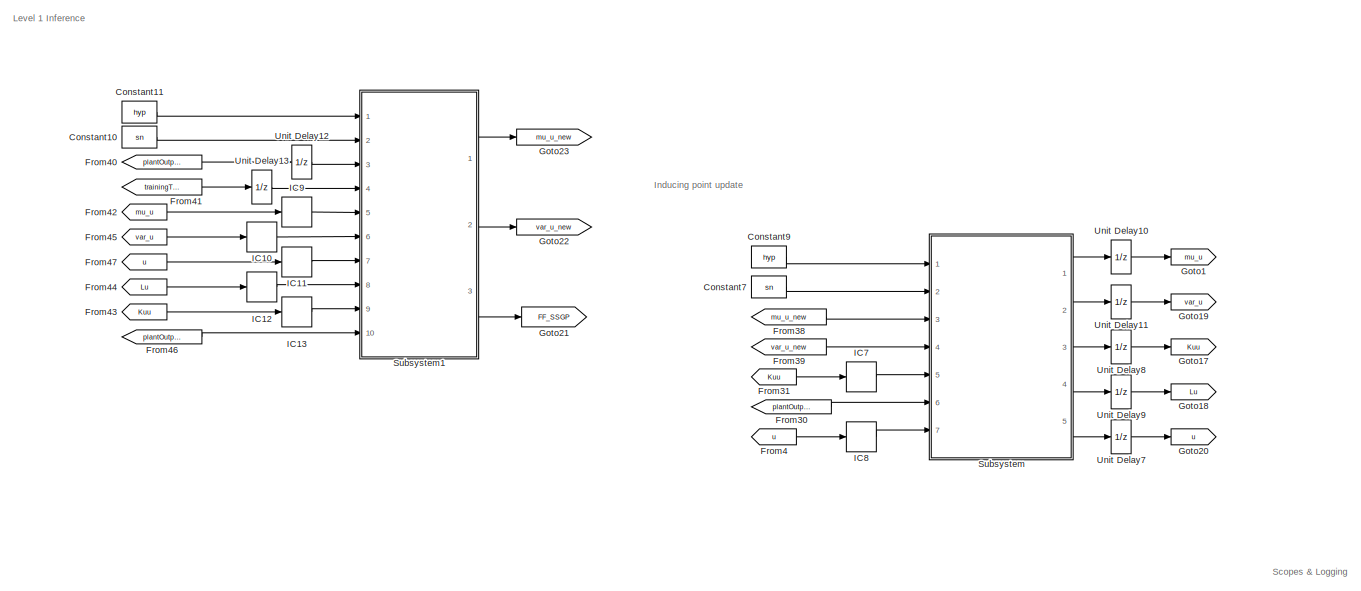
[diagram: root canvas - part 1/4, top center region]
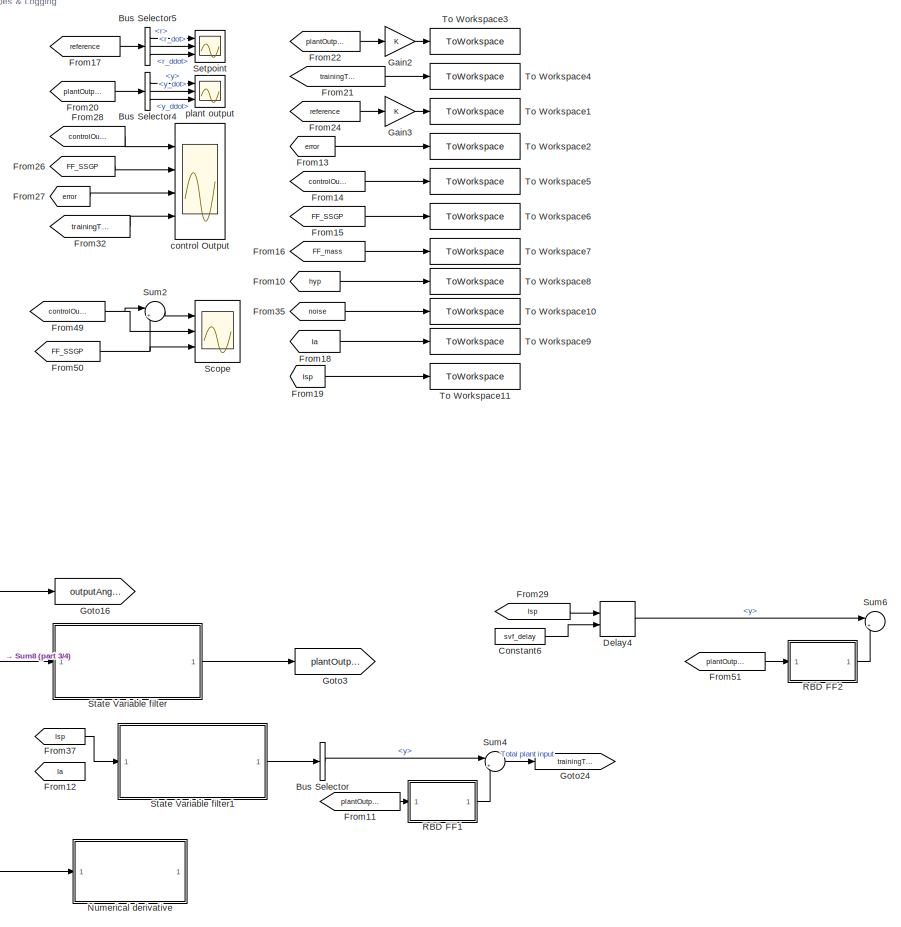
[diagram: root canvas - part 2/4, bottom right region]
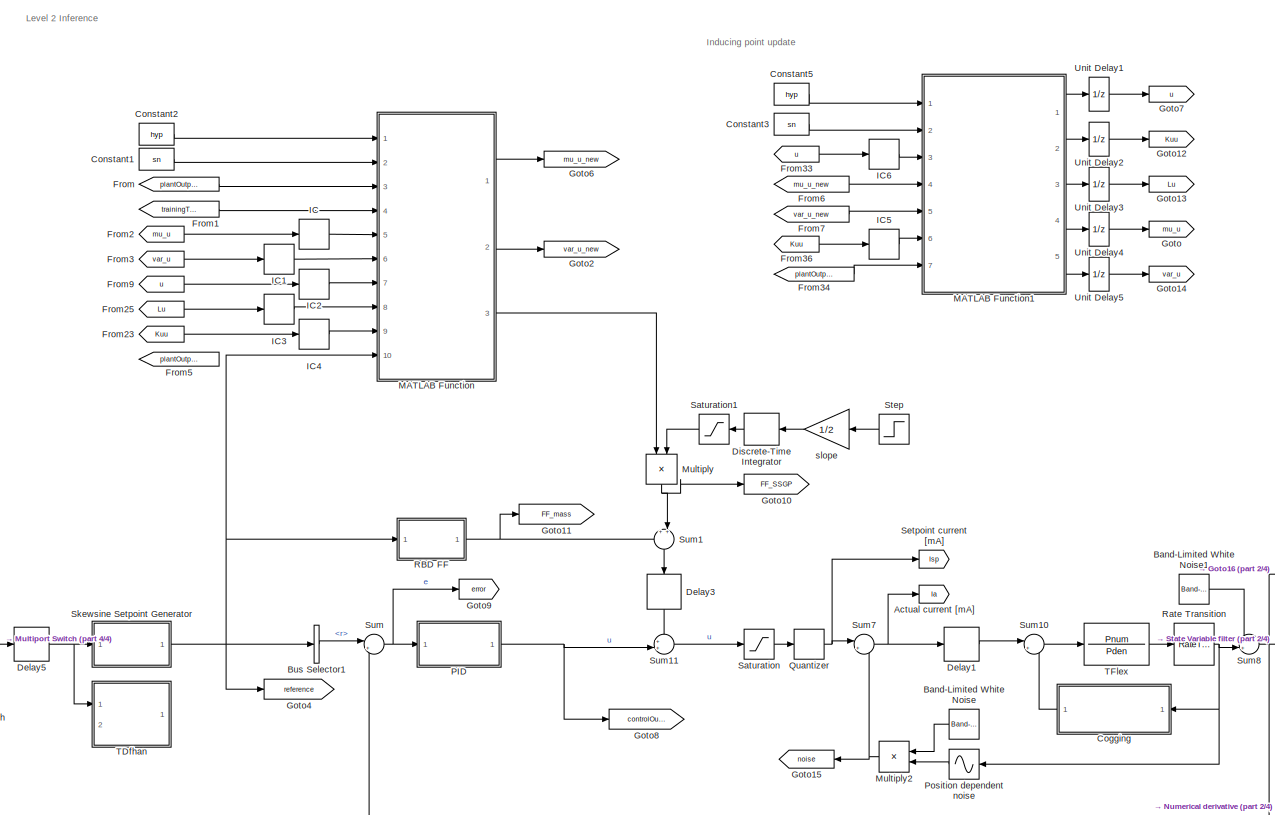
[diagram: root canvas - part 3/4, central region]
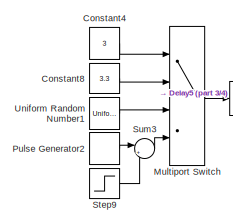
[diagram: root canvas - part 4/4, bottom left region]
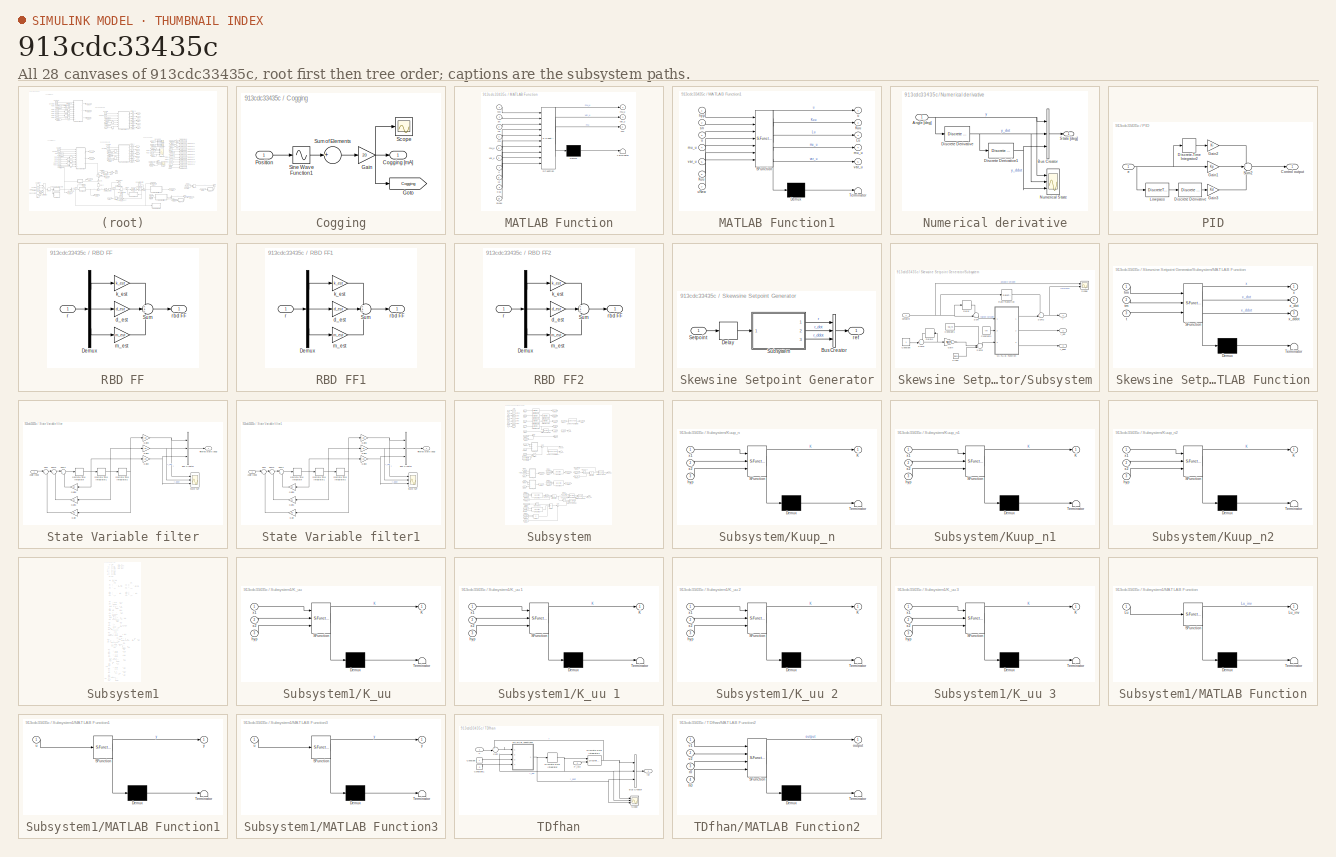
[diagram: thumbnail index - all 28 canvases of the model, root first then tree order]
MODEL slx_913cdc33435c
KIND model
CONFIG AbsTol = auto
CONFIG EnableMultiTasking = off
CONFIG FixedStep = auto
CONFIG MaxStep = auto
CONFIG MinStep = auto
CONFIG RelTol = 1e-3
CONFIG SampleTimeConstraint = Unconstrained
CONFIG Solver = VariableStepAuto
CONFIG SolverName = VariableStepAuto
CONFIG StartTime = 0.0
CONFIG StopTime = t_end
BLOCK [Goto] Actual current [mA]
  GotoTag = Ia
BLOCK [Reference] Band-Limited White Noise  REF=simulink/Sources/Band-Limited
White Noise
  Ports = [0, 1]
  SourceBlock = simulink/Sources/Band-Limited\nWhite Noise
  SourceProductBaseCode = SL
  SourceProductName = Simulink
  SourceType = Band-Limited White Noise.
BLOCK [Reference] Band-Limited White Noise1  REF=simulink/Sources/Band-Limited
White Noise
  Ports = [0, 1]
  SourceBlock = simulink/Sources/Band-Limited\nWhite Noise
  SourceProductBaseCode = SL
  SourceProductName = Simulink
  SourceType = Band-Limited White Noise.
BLOCK [BusSelector] Bus Selector
  OutputAsBus = off
  OutputSignals = y
  Ports = [1, 1]
BLOCK [BusSelector] Bus Selector1
  OutputAsBus = off
  OutputSignals = r
  Ports = [1, 1]
BLOCK [BusSelector] Bus Selector4
  OutputAsBus = off
  OutputSignals = y,y_dot,y_ddot
  Ports = [1, 3]
BLOCK [BusSelector] Bus Selector5
  OutputAsBus = off
  OutputSignals = r,r_dot,r_ddot
  Ports = [1, 3]
BLOCK [SubSystem] Cogging
  Ports = [1, 1]
  RequestExecContextInheritance = off
BLOCK [Outport] Cogging/Cogging [mA]
  IconDisplay = Port number
BLOCK [Gain] Cogging/Gain
  Gain = 20
  OutDataTypeStr = Inherit: Inherit via internal rule
  ParamDataTypeStr = Inherit: Inherit via internal rule
  SaturateOnIntegerOverflow = off
BLOCK [Goto] Cogging/Goto
  GotoTag = Cogging
BLOCK [Inport] Cogging/Position
  IconDisplay = Port number
BLOCK [Scope] Cogging/Scope
  Floating = off
  NumInputPorts = 1
  Ports = [1]
  ScopeSpecificationString = Simulink.scopes.TimeScopeBlockCfg('CurrentConfiguration', extmgr.ConfigurationSet(extmgr.Configuration('Core','General UI',true),extmgr.Configuration('Core','Source UI',true),extmgr.Configuration('Sources','WiredSimulink',true,'DataLoggingVariableName','ScopeData2'),extmgr.Configuration('Visuals','Time Domain',true,'SerializedDisplays',{struct('MinYLimReal','-28.50673','MaxYLimReal','28.50713','YL...<+1388ch>
BLOCK [Sin] Cogging/Sine Wave Function1
  Amplitude = ampCogging'
  Frequency = 2*pi./freqCogging'
  Phase = phaseCogging'*2*pi
  Ports = [1, 1]
  SampleTime = 0
  TimeSource = Use external signal
BLOCK [Sum] Cogging/Sum of Elements
  InputSameDT = off
  Inputs = +
  OutDataTypeStr = Inherit: Inherit via internal rule
  Ports = [1, 1]
  SaturateOnIntegerOverflow = off
BLOCK [Constant] Constant1
  SampleTime = -1
  Value = sn
BLOCK [Constant] Constant10
  Commented = on
  SampleTime = -1
  Value = sn
BLOCK [Constant] Constant11
  Commented = on
  SampleTime = -1
  Value = hyp
BLOCK [Constant] Constant2
  SampleTime = -1
  Value = hyp
BLOCK [Constant] Constant3
  SampleTime = -1
  Value = sn
BLOCK [Constant] Constant4
  SampleTime = sp_ts
  Value = 3
BLOCK [Constant] Constant5
  SampleTime = -1
  Value = hyp
BLOCK [Constant] Constant6
  SampleTime = ts
  Value = svf_delay
BLOCK [Constant] Constant7
  Commented = on
  SampleTime = -1
  Value = sn
BLOCK [Constant] Constant8
  SampleTime = sp_ts
  Value = 3.3
BLOCK [Constant] Constant9
  Commented = on
  SampleTime = -1
  Value = hyp
BLOCK [Delay] Delay1
  Commented = through
  DelayLength = 3
  InitialCondition = 0
  InputPortMap = u0
  Ports = [1, 1]
BLOCK [Delay] Delay3
  Commented = through
  DelayLength = 3
  InitialCondition = 0
  InputPortMap = u0
  Ports = [1, 1]
BLOCK [Delay] Delay4
  DelayLength = 3
  DelayLengthSource = Input port
  InitialCondition = 0
  InputPortMap = u0,p1
  Ports = [2, 1]
BLOCK [Delay] Delay5
  Commented = through
  DelayLength = sp_ts
  InputPortMap = u0
  Ports = [1, 1]
  SampleTime = sp_ts
BLOCK [DiscreteIntegrator] Discrete-Time Integrator
  ICPrevOutput = DiscIntNeverNeededParam
  ICPrevScaledInput = DiscIntNeverNeededParam
  InitialConditionSetting = Auto
  Ports = [1, 1]
  SampleTime = -1
BLOCK [From] From
  GotoTag = plantOutput
BLOCK [From] From1
  GotoTag = trainingTarget
BLOCK [From] From10
  GotoTag = hyp
BLOCK [From] From11
  GotoTag = plantOutput
BLOCK [From] From12
  GotoTag = Ia
BLOCK [From] From13
  GotoTag = error
BLOCK [From] From14
  GotoTag = controlOutput
BLOCK [From] From15
  GotoTag = FF_SSGP
BLOCK [From] From16
  GotoTag = FF_mass
BLOCK [From] From17
  GotoTag = reference
BLOCK [From] From18
  GotoTag = Ia
BLOCK [From] From19
  GotoTag = Isp
BLOCK [From] From2
  GotoTag = mu_u
BLOCK [From] From20
  GotoTag = plantOutput
BLOCK [From] From21
  GotoTag = trainingTarget
BLOCK [From] From22
  GotoTag = plantOutput
BLOCK [From] From23
  GotoTag = Kuu
BLOCK [From] From24
  GotoTag = reference
BLOCK [From] From25
  GotoTag = Lu
BLOCK [From] From26
  GotoTag = FF_SSGP
BLOCK [From] From27
  GotoTag = error
BLOCK [From] From28
  GotoTag = controlOutput
BLOCK [From] From29
  GotoTag = Isp
BLOCK [From] From3
  GotoTag = var_u
BLOCK [From] From30
  Commented = on
  GotoTag = plantOutput
BLOCK [From] From31
  Commented = on
  GotoTag = Kuu
BLOCK [From] From32
  GotoTag = trainingTarget
BLOCK [From] From33
  GotoTag = u
BLOCK [From] From34
  GotoTag = plantOutput
BLOCK [From] From35
  GotoTag = noise
BLOCK [From] From36
  GotoTag = Kuu
BLOCK [From] From37
  GotoTag = Isp
BLOCK [From] From38
  Commented = on
  GotoTag = mu_u_new
BLOCK [From] From39
  Commented = on
  GotoTag = var_u_new
BLOCK [From] From4
  Commented = on
  GotoTag = u
BLOCK [From] From40
  Commented = on
  GotoTag = plantOutput
BLOCK [From] From41
  Commented = on
  GotoTag = trainingTarget
BLOCK [From] From42
  Commented = on
  GotoTag = mu_u
BLOCK [From] From43
  Commented = on
  GotoTag = Kuu
BLOCK [From] From44
  Commented = on
  GotoTag = Lu
BLOCK [From] From45
  Commented = on
  GotoTag = var_u
BLOCK [From] From46
  Commented = on
  GotoTag = plantOutput
BLOCK [From] From47
  Commented = on
  GotoTag = u
BLOCK [From] From49
  GotoTag = controlOutput
BLOCK [From] From5
  GotoTag = plantOutput
BLOCK [From] From50
  GotoTag = FF_SSGP
BLOCK [From] From51
  GotoTag = plantOutput
BLOCK [From] From6
  GotoTag = mu_u_new
BLOCK [From] From7
  GotoTag = var_u_new
BLOCK [From] From9
  GotoTag = u
BLOCK [Gain] Gain2
  OutDataTypeStr = Inherit: Inherit via internal rule
  ParamDataTypeStr = Inherit: Inherit via internal rule
  SaturateOnIntegerOverflow = off
BLOCK [Gain] Gain3
  OutDataTypeStr = Inherit: Inherit via internal rule
  ParamDataTypeStr = Inherit: Inherit via internal rule
  SaturateOnIntegerOverflow = off
BLOCK [Goto] Goto
  GotoTag = mu_u
BLOCK [Goto] Goto1
  Commented = on
  GotoTag = mu_u
BLOCK [Goto] Goto10
  GotoTag = FF_SSGP
BLOCK [Goto] Goto11
  GotoTag = FF_mass
BLOCK [Goto] Goto12
  GotoTag = Kuu
BLOCK [Goto] Goto13
  GotoTag = Lu
BLOCK [Goto] Goto14
  GotoTag = var_u
BLOCK [Goto] Goto15
  GotoTag = noise
BLOCK [Goto] Goto16
  GotoTag = outputAngle
BLOCK [Goto] Goto17
  Commented = on
  GotoTag = Kuu
BLOCK [Goto] Goto18
  Commented = on
  GotoTag = Lu
BLOCK [Goto] Goto19
  Commented = on
  GotoTag = var_u
BLOCK [Goto] Goto2
  GotoTag = var_u_new
BLOCK [Goto] Goto20
  Commented = on
  GotoTag = u
BLOCK [Goto] Goto21
  Commented = on
  GotoTag = FF_SSGP
BLOCK [Goto] Goto22
  Commented = on
  GotoTag = var_u_new
BLOCK [Goto] Goto23
  Commented = on
  GotoTag = mu_u_new
BLOCK [Goto] Goto24
  GotoTag = trainingTarget
BLOCK [Goto] Goto3
  GotoTag = plantOutput
BLOCK [Goto] Goto4
  GotoTag = reference
BLOCK [Goto] Goto6
  GotoTag = mu_u_new
BLOCK [Goto] Goto7
  GotoTag = u
BLOCK [Goto] Goto8
  GotoTag = controlOutput
BLOCK [Goto] Goto9
  GotoTag = error
BLOCK [InitialCondition] IC
  Value = mu_u
BLOCK [InitialCondition] IC1
  Value = var_u
BLOCK [InitialCondition] IC10
  Commented = on
  Value = var_u
BLOCK [InitialCondition] IC11
  Commented = on
  Value = u
BLOCK [InitialCondition] IC12
  Commented = on
  Value = Lu
BLOCK [InitialCondition] IC13
  Commented = on
  Value = Kuu
BLOCK [InitialCondition] IC2
  Value = u
BLOCK [InitialCondition] IC3
  Value = Lu
BLOCK [InitialCondition] IC4
  Value = Kuu
BLOCK [InitialCondition] IC5
  Value = Kuu
BLOCK [InitialCondition] IC6
  Value = u
BLOCK [InitialCondition] IC7
  Commented = on
  Value = Kuu
BLOCK [InitialCondition] IC8
  Commented = on
  Value = u
BLOCK [InitialCondition] IC9
  Commented = on
  Value = mu_u
BLOCK [SubSystem] MATLAB Function
  ErrorFcn = Stateflow.Translate.translate
  PermitHierarchicalResolution = ExplicitOnly
  Ports = [10, 3]
  RequestExecContextInheritance = off
  SFBlockType = MATLAB Function
  TreatAsAtomicUnit = on
BLOCK [Demux] MATLAB Function/ Demux 
  Outputs = 1
  Ports = [1, 1]
BLOCK [S-Function] MATLAB Function/ SFunction 
  EnableBusSupport = on
  FunctionName = sf_sfun
  PortCounts = [10 4]
  Ports = [10, 4]
  SFcnIsStateOwnerBlock = off
  SFunctionDeploymentMode = off
  Tag = Stateflow S-Function TFlex_IFITC 3
BLOCK [Terminator] MATLAB Function/ Terminator 
BLOCK [Inport] MATLAB Function/Kuu
  IconDisplay = Port number
  Port = 9
BLOCK [Inport] MATLAB Function/Lu
  IconDisplay = Port number
  Port = 8
BLOCK [Inport] MATLAB Function/fp
  IconDisplay = Port number
  Port = 3
BLOCK [Inport] MATLAB Function/hyp
  IconDisplay = Port number
BLOCK [Outport] MATLAB Function/mu
  IconDisplay = Port number
  Port = 3
BLOCK [Outport] MATLAB Function/mu_u
  IconDisplay = Port number
BLOCK [Inport] MATLAB Function/mu_u 
  IconDisplay = Port number
  Port = 5
BLOCK [Inport] MATLAB Function/sNew
  IconDisplay = Port number
  Port = 10
BLOCK [Inport] MATLAB Function/sn
  IconDisplay = Port number
  Port = 2
BLOCK [Inport] MATLAB Function/u
  IconDisplay = Port number
  Port = 7
BLOCK [Outport] MATLAB Function/var_u
  IconDisplay = Port number
  Port = 2
BLOCK [Inport] MATLAB Function/var_u 
  IconDisplay = Port number
  Port = 6
BLOCK [Inport] MATLAB Function/yfp
  IconDisplay = Port number
  Port = 4
BLOCK [SubSystem] MATLAB Function1
  ErrorFcn = Stateflow.Translate.translate
  PermitHierarchicalResolution = ExplicitOnly
  Ports = [7, 5]
  RequestExecContextInheritance = off
  SFBlockType = MATLAB Function
  TreatAsAtomicUnit = on
BLOCK [Demux] MATLAB Function1/ Demux 
  Outputs = 1
  Ports = [1, 1]
BLOCK [S-Function] MATLAB Function1/ SFunction 
  EnableBusSupport = on
  FunctionName = sf_sfun
  PortCounts = [7 6]
  Ports = [7, 6]
  SFcnIsStateOwnerBlock = off
  SFunctionDeploymentMode = off
  Tag = Stateflow S-Function TFlex_IFITC 4
BLOCK [Terminator] MATLAB Function1/ Terminator 
BLOCK [Outport] MATLAB Function1/Kuu
  IconDisplay = Port number
  Port = 2
BLOCK [Inport] MATLAB Function1/Kuu 
  IconDisplay = Port number
  Port = 6
BLOCK [Outport] MATLAB Function1/Lu
  IconDisplay = Port number
  Port = 3
BLOCK [Inport] MATLAB Function1/hyp
  IconDisplay = Port number
BLOCK [Outport] MATLAB Function1/mu_u
  IconDisplay = Port number
  Port = 4
BLOCK [Inport] MATLAB Function1/mu_u 
  IconDisplay = Port number
  Port = 4
BLOCK [Inport] MATLAB Function1/sn
  IconDisplay = Port number
  Port = 2
BLOCK [Outport] MATLAB Function1/u
  IconDisplay = Port number
BLOCK [Inport] MATLAB Function1/u 
  IconDisplay = Port number
  Port = 3
BLOCK [Inport] MATLAB Function1/uNew
  IconDisplay = Port number
  Port = 7
BLOCK [Outport] MATLAB Function1/var_u
  IconDisplay = Port number
  Port = 5
BLOCK [Inport] MATLAB Function1/var_u 
  IconDisplay = Port number
  Port = 5
BLOCK [Product] Multiply
  InputSameDT = off
  OutDataTypeStr = Inherit: Inherit via internal rule
  Ports = [2, 1]
  RndMeth = Floor
  SaturateOnIntegerOverflow = off
BLOCK [Product] Multiply2
  InputSameDT = off
  OutDataTypeStr = Inherit: Inherit via internal rule
  Ports = [2, 1]
  RndMeth = Floor
  SaturateOnIntegerOverflow = off
BLOCK [MultiPortSwitch] Multiport Switch
  InputSameDT = off
  Ports = [4, 1]
  SaturateOnIntegerOverflow = off
BLOCK [SubSystem] Numerical derivative
  Ports = [1, 1]
  RequestExecContextInheritance = off
BLOCK [Inport] Numerical derivative/Angle [deg]
  IconDisplay = Port number
BLOCK [BusCreator] Numerical derivative/Bus Creator
  DisplayOption = bar
  InheritFromInputs = on
  Inputs = 3
  Ports = [3, 1]
BLOCK [Reference] Numerical derivative/Discrete Derivative  REF=simulink/Discrete/Discrete Derivative
  Ports = [1, 1]
  SourceBlock = simulink/Discrete/Discrete Derivative
  SourceProductBaseCode = SL
  SourceProductName = Simulink
  SourceType = Discrete Derivative
BLOCK [Reference] Numerical derivative/Discrete Derivative1  REF=simulink/Discrete/Discrete Derivative
  Ports = [1, 1]
  SourceBlock = simulink/Discrete/Discrete Derivative
  SourceProductBaseCode = SL
  SourceProductName = Simulink
  SourceType = Discrete Derivative
BLOCK [Scope] Numerical derivative/Numerical State
  Floating = off
  NumInputPorts = 3
  Ports = [3]
  ScopeSpecificationString = Simulink.scopes.TimeScopeBlockCfg('CurrentConfiguration', extmgr.ConfigurationSet(extmgr.Configuration('Core','General UI',true),extmgr.Configuration('Core','Source UI',true),extmgr.Configuration('Sources','WiredSimulink',true,'DataLoggingVariableName','ScopeData2','DataLoggingSaveFormat','StructureWithTime'),extmgr.Configuration('Visuals','Time Domain',true,'SerializedDisplays',{struct('MinYLimRe...<+2770ch>
BLOCK [Outport] Numerical derivative/State [deg]
  IconDisplay = Port number
BLOCK [SubSystem] PID
  Ports = [1, 1]
  RequestExecContextInheritance = off
BLOCK [Outport] PID/Control output
  IconDisplay = Port number
BLOCK [Reference] PID/Discrete Derivative  REF=simulink/Discrete/Discrete Derivative
  Ports = [1, 1]
  SourceBlock = simulink/Discrete/Discrete Derivative
  SourceProductBaseCode = SL
  SourceProductName = Simulink
  SourceType = Discrete Derivative
BLOCK [DiscreteIntegrator] PID/Discrete-Time Integrator2
  ICPrevOutput = DiscIntNeverNeededParam
  ICPrevScaledInput = DiscIntNeverNeededParam
  InitialConditionSetting = Auto
  Ports = [1, 1]
  SampleTime = -1
BLOCK [Gain] PID/Gain1
  Gain = Kp
  OutDataTypeStr = Inherit: Inherit via internal rule
  ParamDataTypeStr = Inherit: Inherit via internal rule
  SaturateOnIntegerOverflow = off
BLOCK [Gain] PID/Gain2
  Gain = Ki
  OutDataTypeStr = Inherit: Inherit via internal rule
  ParamDataTypeStr = Inherit: Inherit via internal rule
  SaturateOnIntegerOverflow = off
BLOCK [Gain] PID/Gain3
  Gain = Kd
  OutDataTypeStr = Inherit: Inherit via internal rule
  ParamDataTypeStr = Inherit: Inherit via internal rule
  SaturateOnIntegerOverflow = off
BLOCK [DiscreteTransferFcn] PID/Lowpass
  Denominator = LPden
  InputPortMap = u0
  Numerator = LPnum
  Ports = [1, 1]
  SampleTime = ts
BLOCK [Sum] PID/Sum2
  IconShape = round
  InputSameDT = off
  Inputs = 3
  OutDataTypeStr = Inherit: Inherit via internal rule
  Ports = [3, 1]
  SaturateOnIntegerOverflow = off
BLOCK [Inport] PID/e
  IconDisplay = Port number
BLOCK [Sin] Position dependent noise
  Amplitude = 2.5
  Bias = 7.4979
  Frequency = 2*pi/13
  Ports = [1, 1]
  SampleTime = 0
  TimeSource = Use external signal
BLOCK [DiscretePulseGenerator] Pulse Generator2
  Amplitude = 2*24
  Ports = [0, 1]
  SampleTime = sp_ts
BLOCK [Quantizer] Quantizer
  QuantizationInterval = 1
BLOCK [SubSystem] RBD FF
  Ports = [1, 1]
  RequestExecContextInheritance = off
BLOCK [Demux] RBD FF/Demux
  DisplayOption = bar
  Outputs = 3
  Ports = [1, 3]
BLOCK [Sum] RBD FF/Sum
  IconShape = round
  InputSameDT = off
  Inputs = +++
  OutDataTypeStr = Inherit: Inherit via internal rule
  Ports = [3, 1]
  SaturateOnIntegerOverflow = off
BLOCK [Gain] RBD FF/d_est
  Gain = d_est
  OutDataTypeStr = Inherit: Inherit via internal rule
  ParamDataTypeStr = Inherit: Inherit via internal rule
  SaturateOnIntegerOverflow = off
BLOCK [Gain] RBD FF/k_est
  Gain = k_est
  OutDataTypeStr = Inherit: Inherit via internal rule
  ParamDataTypeStr = Inherit: Inherit via internal rule
  SaturateOnIntegerOverflow = off
BLOCK [Gain] RBD FF/m_est
  Gain = m_est
  OutDataTypeStr = Inherit: Inherit via internal rule
  ParamDataTypeStr = Inherit: Inherit via internal rule
  SaturateOnIntegerOverflow = off
BLOCK [Inport] RBD FF/r
  IconDisplay = Port number
BLOCK [Outport] RBD FF/rbd FF
  IconDisplay = Port number
BLOCK [SubSystem] RBD FF1
  Ports = [1, 1]
  RequestExecContextInheritance = off
BLOCK [Demux] RBD FF1/Demux
  DisplayOption = bar
  Outputs = 3
  Ports = [1, 3]
BLOCK [Sum] RBD FF1/Sum
  IconShape = round
  InputSameDT = off
  Inputs = +++
  OutDataTypeStr = Inherit: Inherit via internal rule
  Ports = [3, 1]
  SaturateOnIntegerOverflow = off
BLOCK [Gain] RBD FF1/d_est
  Gain = d_est
  OutDataTypeStr = Inherit: Inherit via internal rule
  ParamDataTypeStr = Inherit: Inherit via internal rule
  SaturateOnIntegerOverflow = off
BLOCK [Gain] RBD FF1/k_est
  Gain = k_est
  OutDataTypeStr = Inherit: Inherit via internal rule
  ParamDataTypeStr = Inherit: Inherit via internal rule
  SaturateOnIntegerOverflow = off
BLOCK [Gain] RBD FF1/m_est
  Gain = m_est
  OutDataTypeStr = Inherit: Inherit via internal rule
  ParamDataTypeStr = Inherit: Inherit via internal rule
  SaturateOnIntegerOverflow = off
BLOCK [Inport] RBD FF1/r
  IconDisplay = Port number
BLOCK [Outport] RBD FF1/rbd FF
  IconDisplay = Port number
BLOCK [SubSystem] RBD FF2
  Ports = [1, 1]
  RequestExecContextInheritance = off
BLOCK [Demux] RBD FF2/Demux
  DisplayOption = bar
  Outputs = 3
  Ports = [1, 3]
BLOCK [Sum] RBD FF2/Sum
  IconShape = round
  InputSameDT = off
  Inputs = +++
  OutDataTypeStr = Inherit: Inherit via internal rule
  Ports = [3, 1]
  SaturateOnIntegerOverflow = off
BLOCK [Gain] RBD FF2/d_est
  Gain = d_est
  OutDataTypeStr = Inherit: Inherit via internal rule
  ParamDataTypeStr = Inherit: Inherit via internal rule
  SaturateOnIntegerOverflow = off
BLOCK [Gain] RBD FF2/k_est
  Gain = k_est
  OutDataTypeStr = Inherit: Inherit via internal rule
  ParamDataTypeStr = Inherit: Inherit via internal rule
  SaturateOnIntegerOverflow = off
BLOCK [Gain] RBD FF2/m_est
  Gain = m_est
  OutDataTypeStr = Inherit: Inherit via internal rule
  ParamDataTypeStr = Inherit: Inherit via internal rule
  SaturateOnIntegerOverflow = off
BLOCK [Inport] RBD FF2/r
  IconDisplay = Port number
BLOCK [Outport] RBD FF2/rbd FF
  IconDisplay = Port number
BLOCK [RateTransition] Rate Transition
  OutPortSampleTime = ts
BLOCK [Saturate] Saturation
  InputPortMap = u0
  LowerLimit = -I_limit
  Ports = [1, 1]
  UpperLimit = I_limit
BLOCK [Saturate] Saturation1
  InputPortMap = u0
  LowerLimit = 0
  Ports = [1, 1]
  UpperLimit = 1
BLOCK [Scope] Scope
  Floating = off
  NumInputPorts = 3
  Ports = [3]
  ScopeSpecificationString = Simulink.scopes.TimeScopeBlockCfg('CurrentConfiguration', extmgr.ConfigurationSet(extmgr.Configuration('Core','General UI',true),extmgr.Configuration('Core','Source UI',true),extmgr.Configuration('Sources','WiredSimulink',true,'DataLoggingVariableName','ScopeData1'),extmgr.Configuration('Visuals','Time Domain',true,'SerializedDisplays',{struct('MinYLimReal','-420.04539','MaxYLimReal','414.71353','...<+2808ch>
BLOCK [Scope] Setpoint
  Floating = off
  NumInputPorts = 3
  Ports = [3]
  ScopeSpecificationString = Simulink.scopes.TimeScopeBlockCfg('CurrentConfiguration', extmgr.ConfigurationSet(extmgr.Configuration('Core','General UI',true),extmgr.Configuration('Core','Source UI',true),extmgr.Configuration('Sources','WiredSimulink',true,'DataLoggingVariableName','ScopeData3','DataLoggingSaveFormat','StructureWithTime'),extmgr.Configuration('Visuals','Time Domain',true,'SerializedDisplays',{struct('MinYLimRe...<+2775ch>
BLOCK [Goto] Setpoint current [mA]
  GotoTag = Isp
BLOCK [SubSystem] Skewsine Setpoint Generator
  Ports = [1, 1]
  RequestExecContextInheritance = off
BLOCK [BusCreator] Skewsine Setpoint Generator/Bus Creator
  DisplayOption = bar
  InheritFromInputs = on
  Inputs = 3
  Ports = [3, 1]
BLOCK [Delay] Skewsine Setpoint Generator/Delay
  Commented = through
  DelayLength = 1
  InitialCondition = 0
  InputPortMap = u0
  Ports = [1, 1]
BLOCK [Inport] Skewsine Setpoint Generator/Setpoint
  IconDisplay = Port number
BLOCK [SubSystem] Skewsine Setpoint Generator/Subsystem
  Ports = [1, 3]
  RequestExecContextInheritance = off
BLOCK [Clock] Skewsine Setpoint Generator/Subsystem/Clock
  Decimation = 100
BLOCK [Constant] Skewsine Setpoint Generator/Subsystem/Constant
  SampleTime = sp_ts
BLOCK [Constant] Skewsine Setpoint Generator/Subsystem/Constant1
  SampleTime = sp_ts
  Value = -sp_ts
BLOCK [Constant] Skewsine Setpoint Generator/Subsystem/Constant2
  SampleTime = sp_ts
  Value = tm
BLOCK [Delay] Skewsine Setpoint Generator/Subsystem/Delay
  DelayLength = 1
  InitialCondition = 0
  InputPortMap = u0
  Ports = [1, 1]
  SampleTime = sp_ts
BLOCK [Delay] Skewsine Setpoint Generator/Subsystem/Delay4
  DelayLength = 1
  InitialCondition = 0
  InputPortMap = u0
  Ports = [1, 1]
  SampleTime = sp_ts
BLOCK [Gain] Skewsine Setpoint Generator/Subsystem/Gain
  Gain = sp_ts
  OutDataTypeStr = Inherit: Inherit via internal rule
  ParamDataTypeStr = Inherit: Inherit via internal rule
  SaturateOnIntegerOverflow = off
BLOCK [SubSystem] Skewsine Setpoint Generator/Subsystem/MATLAB Function
  ErrorFcn = Stateflow.Translate.translate
  PermitHierarchicalResolution = ExplicitOnly
  Ports = [3, 3]
  RequestExecContextInheritance = off
  SFBlockType = MATLAB Function
  TreatAsAtomicUnit = on
BLOCK [Demux] Skewsine Setpoint Generator/Subsystem/MATLAB Function/ Demux 
  Outputs = 1
  Ports = [1, 1]
BLOCK [S-Function] Skewsine Setpoint Generator/Subsystem/MATLAB Function/ SFunction 
  EnableBusSupport = on
  FunctionName = sf_sfun
  PortCounts = [3 4]
  Ports = [3, 4]
  SFcnIsStateOwnerBlock = off
  SFunctionDeploymentMode = off
  Tag = Stateflow S-Function TFlex_IFITC 2
BLOCK [Terminator] Skewsine Setpoint Generator/Subsystem/MATLAB Function/ Terminator 
BLOCK [Inport] Skewsine Setpoint Generator/Subsystem/MATLAB Function/hm
  IconDisplay = Port number
BLOCK [Inport] Skewsine Setpoint Generator/Subsystem/MATLAB Function/t
  IconDisplay = Port number
  Port = 3
BLOCK [Inport] Skewsine Setpoint Generator/Subsystem/MATLAB Function/tm
  IconDisplay = Port number
  Port = 2
BLOCK [Outport] Skewsine Setpoint Generator/Subsystem/MATLAB Function/x
  IconDisplay = Port number
BLOCK [Outport] Skewsine Setpoint Generator/Subsystem/MATLAB Function/x_ddot
  IconDisplay = Port number
  Port = 3
BLOCK [Outport] Skewsine Setpoint Generator/Subsystem/MATLAB Function/x_dot
  IconDisplay = Port number
  Port = 2
BLOCK [RateTransition] Skewsine Setpoint Generator/Subsystem/Rate Transition
  OutPortSampleTime = ts
BLOCK [Scope] Skewsine Setpoint Generator/Subsystem/Scope
  Floating = off
  NumInputPorts = 2
  Ports = [2]
  ScopeSpecificationString = Simulink.scopes.TimeScopeBlockCfg('CurrentConfiguration', extmgr.ConfigurationSet(extmgr.Configuration('Core','General UI',true),extmgr.Configuration('Core','Source UI',true),extmgr.Configuration('Sources','WiredSimulink',true,'DataLoggingVariableName','ScopeData2'),extmgr.Configuration('Visuals','Time Domain',true,'SerializedDisplays',{struct('MinYLimReal','-26.98733','MaxYLimReal','28.29894','YL...<+1450ch>
BLOCK [Sum] Skewsine Setpoint Generator/Subsystem/Sum
  IconShape = round
  InputSameDT = off
  Inputs = -+|
  OutDataTypeStr = Inherit: Inherit via internal rule
  Ports = [2, 1]
  SaturateOnIntegerOverflow = off
BLOCK [Sum] Skewsine Setpoint Generator/Subsystem/Sum2
  IconShape = round
  InputSameDT = off
  Inputs = ++|
  OutDataTypeStr = Inherit: Inherit via internal rule
  Ports = [2, 1]
  SaturateOnIntegerOverflow = off
BLOCK [Sum] Skewsine Setpoint Generator/Subsystem/Sum5
  IconShape = round
  InputSameDT = off
  Inputs = ++|
  OutDataTypeStr = Inherit: Inherit via internal rule
  Ports = [2, 1]
  SaturateOnIntegerOverflow = off
BLOCK [Sum] Skewsine Setpoint Generator/Subsystem/Sum6
  IconShape = round
  InputSameDT = off
  Inputs = --+|
  OutDataTypeStr = Inherit: Inherit via internal rule
  Ports = [3, 1]
  SaturateOnIntegerOverflow = off
BLOCK [Outport] Skewsine Setpoint Generator/Subsystem/r
  IconDisplay = Port number
BLOCK [Outport] Skewsine Setpoint Generator/Subsystem/r_ddot
  IconDisplay = Port number
  Port = 3
BLOCK [Outport] Skewsine Setpoint Generator/Subsystem/r_dot
  IconDisplay = Port number
  Port = 2
BLOCK [Inport] Skewsine Setpoint Generator/Subsystem/setpoint
  IconDisplay = Port number
BLOCK [Outport] Skewsine Setpoint Generator/ref
  IconDisplay = Port number
BLOCK [SubSystem] State Variable filter
  Ports = [1, 1]
  RequestExecContextInheritance = off
BLOCK [Inport] State Variable filter/Angle [deg]
  IconDisplay = Port number
BLOCK [BusCreator] State Variable filter/Bus Creator
  DisplayOption = bar
  InheritFromInputs = on
  Inputs = 3
  Ports = [3, 1]
BLOCK [DiscreteIntegrator] State Variable filter/Discrete-Time Integrator
  ICPrevOutput = DiscIntNeverNeededParam
  ICPrevScaledInput = DiscIntNeverNeededParam
  InitialConditionSetting = Auto
  Ports = [1, 1]
  SampleTime = -1
BLOCK [DiscreteIntegrator] State Variable filter/Discrete-Time Integrator1
  ICPrevOutput = DiscIntNeverNeededParam
  ICPrevScaledInput = DiscIntNeverNeededParam
  InitialConditionSetting = Auto
  Ports = [1, 1]
  SampleTime = -1
BLOCK [DiscreteIntegrator] State Variable filter/Discrete-Time Integrator2
  ICPrevOutput = DiscIntNeverNeededParam
  ICPrevScaledInput = DiscIntNeverNeededParam
  InitialConditionSetting = Auto
  Ports = [1, 1]
  SampleTime = -1
BLOCK [Outport] State Variable filter/Filtered state [deg]
  IconDisplay = Port number
  SampleTime = ts
BLOCK [Gain] State Variable filter/Gain
  Gain = a0
  OutDataTypeStr = Inherit: Inherit via internal rule
  ParamDataTypeStr = Inherit: Inherit via internal rule
  SaturateOnIntegerOverflow = off
BLOCK [Gain] State Variable filter/Gain1
  Gain = a1
  OutDataTypeStr = Inherit: Inherit via internal rule
  ParamDataTypeStr = Inherit: Inherit via internal rule
  SaturateOnIntegerOverflow = off
BLOCK [Gain] State Variable filter/Gain2
  Gain = a0
  OutDataTypeStr = Inherit: Inherit via internal rule
  ParamDataTypeStr = Inherit: Inherit via internal rule
  SaturateOnIntegerOverflow = off
BLOCK [Gain] State Variable filter/Gain3
  Gain = a0
  OutDataTypeStr = Inherit: Inherit via internal rule
  ParamDataTypeStr = Inherit: Inherit via internal rule
  SaturateOnIntegerOverflow = off
BLOCK [Gain] State Variable filter/Gain4
  Gain = a0
  OutDataTypeStr = Inherit: Inherit via internal rule
  ParamDataTypeStr = Inherit: Inherit via internal rule
  SaturateOnIntegerOverflow = off
BLOCK [Gain] State Variable filter/Gain5
  Gain = a2
  OutDataTypeStr = Inherit: Inherit via internal rule
  ParamDataTypeStr = Inherit: Inherit via internal rule
  SaturateOnIntegerOverflow = off
BLOCK [Scope] State Variable filter/State SVF
  Floating = off
  NumInputPorts = 3
  Ports = [3]
  ScopeSpecificationString = Simulink.scopes.TimeScopeBlockCfg('CurrentConfiguration', extmgr.ConfigurationSet(extmgr.Configuration('Core','General UI',true),extmgr.Configuration('Core','Source UI',true),extmgr.Configuration('Sources','WiredSimulink',true,'DataLoggingVariableName','ScopeData2','DataLoggingSaveFormat','StructureWithTime'),extmgr.Configuration('Visuals','Time Domain',true,'SerializedDisplays',{struct('MinYLimRe...<+2766ch>
BLOCK [Sum] State Variable filter/Sum
  IconShape = round
  InputSameDT = off
  Inputs = |+-
  OutDataTypeStr = Inherit: Inherit via internal rule
  Ports = [2, 1]
  SaturateOnIntegerOverflow = off
BLOCK [Sum] State Variable filter/Sum1
  IconShape = round
  InputSameDT = off
  Inputs = |+-
  OutDataTypeStr = Inherit: Inherit via internal rule
  Ports = [2, 1]
  SaturateOnIntegerOverflow = off
BLOCK [Sum] State Variable filter/Sum5
  IconShape = round
  InputSameDT = off
  Inputs = |+-
  OutDataTypeStr = Inherit: Inherit via internal rule
  Ports = [2, 1]
  SaturateOnIntegerOverflow = off
BLOCK [SubSystem] State Variable filter1
  Ports = [1, 1]
  RequestExecContextInheritance = off
BLOCK [Inport] State Variable filter1/Angle [deg]
  IconDisplay = Port number
BLOCK [BusCreator] State Variable filter1/Bus Creator
  DisplayOption = bar
  InheritFromInputs = on
  Inputs = 3
  Ports = [3, 1]
BLOCK [DiscreteIntegrator] State Variable filter1/Discrete-Time Integrator
  ICPrevOutput = DiscIntNeverNeededParam
  ICPrevScaledInput = DiscIntNeverNeededParam
  InitialConditionSetting = Auto
  Ports = [1, 1]
  SampleTime = -1
BLOCK [DiscreteIntegrator] State Variable filter1/Discrete-Time Integrator1
  ICPrevOutput = DiscIntNeverNeededParam
  ICPrevScaledInput = DiscIntNeverNeededParam
  InitialConditionSetting = Auto
  Ports = [1, 1]
  SampleTime = -1
BLOCK [DiscreteIntegrator] State Variable filter1/Discrete-Time Integrator2
  ICPrevOutput = DiscIntNeverNeededParam
  ICPrevScaledInput = DiscIntNeverNeededParam
  InitialConditionSetting = Auto
  Ports = [1, 1]
  SampleTime = -1
BLOCK [Outport] State Variable filter1/Filtered state [deg]
  IconDisplay = Port number
  SampleTime = ts
BLOCK [Gain] State Variable filter1/Gain
  Gain = a0
  OutDataTypeStr = Inherit: Inherit via internal rule
  ParamDataTypeStr = Inherit: Inherit via internal rule
  SaturateOnIntegerOverflow = off
BLOCK [Gain] State Variable filter1/Gain1
  Gain = a1
  OutDataTypeStr = Inherit: Inherit via internal rule
  ParamDataTypeStr = Inherit: Inherit via internal rule
  SaturateOnIntegerOverflow = off
BLOCK [Gain] State Variable filter1/Gain2
  Gain = a0
  OutDataTypeStr = Inherit: Inherit via internal rule
  ParamDataTypeStr = Inherit: Inherit via internal rule
  SaturateOnIntegerOverflow = off
BLOCK [Gain] State Variable filter1/Gain3
  Gain = a0
  OutDataTypeStr = Inherit: Inherit via internal rule
  ParamDataTypeStr = Inherit: Inherit via internal rule
  SaturateOnIntegerOverflow = off
BLOCK [Gain] State Variable filter1/Gain4
  Gain = a0
  OutDataTypeStr = Inherit: Inherit via internal rule
  ParamDataTypeStr = Inherit: Inherit via internal rule
  SaturateOnIntegerOverflow = off
BLOCK [Gain] State Variable filter1/Gain5
  Gain = a2
  OutDataTypeStr = Inherit: Inherit via internal rule
  ParamDataTypeStr = Inherit: Inherit via internal rule
  SaturateOnIntegerOverflow = off
BLOCK [Scope] State Variable filter1/State SVF
  Floating = off
  NumInputPorts = 3
  Ports = [3]
  ScopeSpecificationString = Simulink.scopes.TimeScopeBlockCfg('CurrentConfiguration', extmgr.ConfigurationSet(extmgr.Configuration('Core','General UI',true),extmgr.Configuration('Core','Source UI',true),extmgr.Configuration('Sources','WiredSimulink',true,'DataLoggingVariableName','ScopeData2','DataLoggingSaveFormat','StructureWithTime'),extmgr.Configuration('Visuals','Time Domain',true,'SerializedDisplays',{struct('MinYLimRe...<+2766ch>
BLOCK [Sum] State Variable filter1/Sum
  IconShape = round
  InputSameDT = off
  Inputs = |+-
  OutDataTypeStr = Inherit: Inherit via internal rule
  Ports = [2, 1]
  SaturateOnIntegerOverflow = off
BLOCK [Sum] State Variable filter1/Sum1
  IconShape = round
  InputSameDT = off
  Inputs = |+-
  OutDataTypeStr = Inherit: Inherit via internal rule
  Ports = [2, 1]
  SaturateOnIntegerOverflow = off
BLOCK [Sum] State Variable filter1/Sum5
  IconShape = round
  InputSameDT = off
  Inputs = |+-
  OutDataTypeStr = Inherit: Inherit via internal rule
  Ports = [2, 1]
  SaturateOnIntegerOverflow = off
BLOCK [Step] Step
  SampleTime = 0
  Time = t_predict
BLOCK [Step] Step9
  After = -24
  SampleTime = sp_ts
  Time = 0
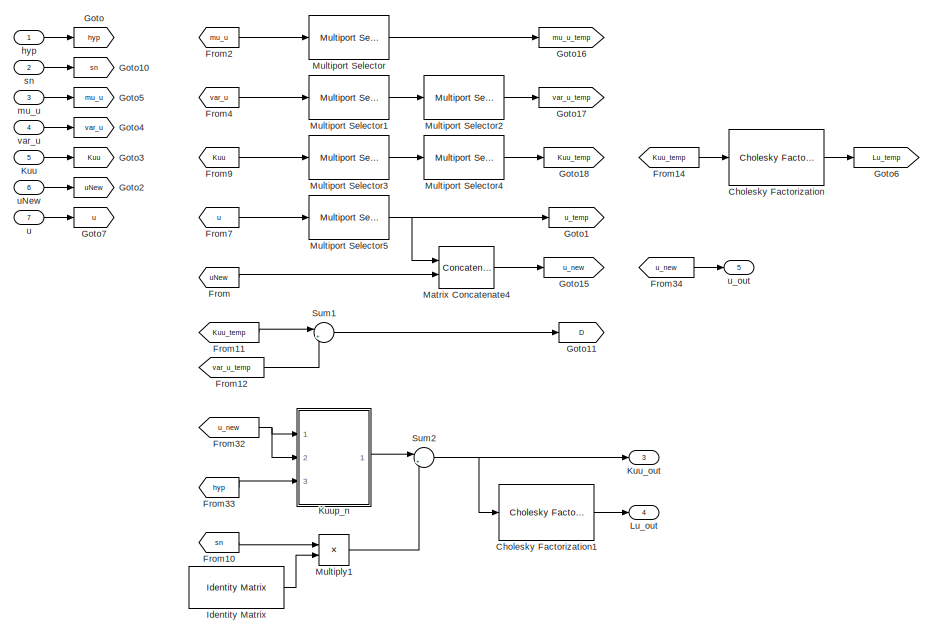
[diagram: Subsystem - part 1/2, full width, top band]
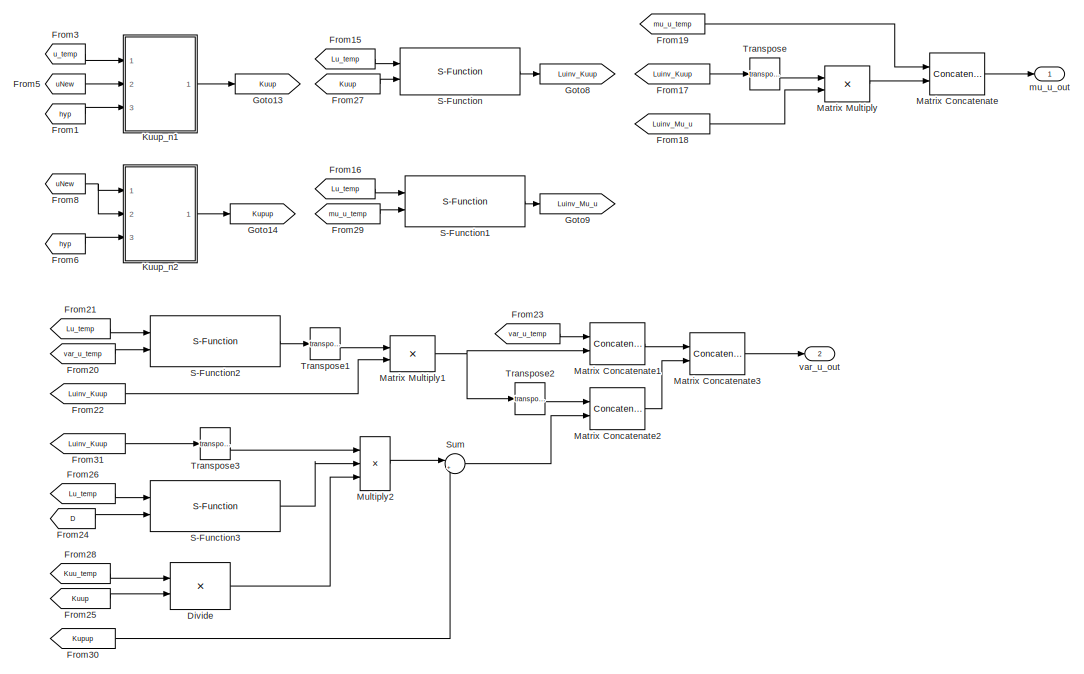
[diagram: Subsystem - part 2/2, full width, bottom band]
BLOCK [SubSystem] Subsystem
  Commented = on
  Ports = [7, 5]
  RequestExecContextInheritance = off
BLOCK [Reference] Subsystem/Cholesky Factorization  REF=dspfactors/Cholesky
Factorization
  Ports = [1, 1]
  SourceBlock = dspfactors/Cholesky\nFactorization
  SourceProductBaseCode = DS
  SourceProductName = DSP System Toolbox
  SourceType = Cholesky Factorization
BLOCK [Reference] Subsystem/Cholesky Factorization1  REF=dspfactors/Cholesky
Factorization
  Ports = [1, 1]
  SourceBlock = dspfactors/Cholesky\nFactorization
  SourceProductBaseCode = DS
  SourceProductName = DSP System Toolbox
  SourceType = Cholesky Factorization
BLOCK [Product] Subsystem/Divide
  InputSameDT = off
  Inputs = /*
  Multiplication = Matrix(*)
  OutDataTypeStr = Inherit: Inherit via internal rule
  Ports = [2, 1]
  RndMeth = Floor
  SaturateOnIntegerOverflow = off
BLOCK [From] Subsystem/From
  GotoTag = uNew
BLOCK [From] Subsystem/From1
  GotoTag = hyp
BLOCK [From] Subsystem/From10
  GotoTag = sn
BLOCK [From] Subsystem/From11
  GotoTag = Kuu_temp
BLOCK [From] Subsystem/From12
  GotoTag = var_u_temp
BLOCK [From] Subsystem/From14
  GotoTag = Kuu_temp
BLOCK [From] Subsystem/From15
  GotoTag = Lu_temp
BLOCK [From] Subsystem/From16
  GotoTag = Lu_temp
BLOCK [From] Subsystem/From17
  GotoTag = Luinv_Kuup
BLOCK [From] Subsystem/From18
  GotoTag = Luinv_Mu_u
BLOCK [From] Subsystem/From19
  GotoTag = mu_u_temp
BLOCK [From] Subsystem/From2
  GotoTag = mu_u
BLOCK [From] Subsystem/From20
  GotoTag = var_u_temp
BLOCK [From] Subsystem/From21
  GotoTag = Lu_temp
BLOCK [From] Subsystem/From22
  GotoTag = Luinv_Kuup
BLOCK [From] Subsystem/From23
  GotoTag = var_u_temp
BLOCK [From] Subsystem/From24
  GotoTag = D
BLOCK [From] Subsystem/From25
  GotoTag = Kuup
BLOCK [From] Subsystem/From26
  GotoTag = Lu_temp
BLOCK [From] Subsystem/From27
  GotoTag = Kuup
BLOCK [From] Subsystem/From28
  GotoTag = Kuu_temp
BLOCK [From] Subsystem/From29
  GotoTag = mu_u_temp
BLOCK [From] Subsystem/From3
  GotoTag = u_temp
BLOCK [From] Subsystem/From30
  GotoTag = Kupup
BLOCK [From] Subsystem/From31
  GotoTag = Luinv_Kuup
BLOCK [From] Subsystem/From32
  GotoTag = u_new
BLOCK [From] Subsystem/From33
  GotoTag = hyp
BLOCK [From] Subsystem/From34
  GotoTag = u_new
BLOCK [From] Subsystem/From4
  GotoTag = var_u
BLOCK [From] Subsystem/From5
  GotoTag = uNew
BLOCK [From] Subsystem/From6
  GotoTag = hyp
BLOCK [From] Subsystem/From7
  GotoTag = u
BLOCK [From] Subsystem/From8
  GotoTag = uNew
BLOCK [From] Subsystem/From9
  GotoTag = Kuu
BLOCK [Goto] Subsystem/Goto
  GotoTag = hyp
BLOCK [Goto] Subsystem/Goto1
  GotoTag = u_temp
BLOCK [Goto] Subsystem/Goto10
  GotoTag = sn
BLOCK [Goto] Subsystem/Goto11
  GotoTag = D
BLOCK [Goto] Subsystem/Goto13
  GotoTag = Kuup
BLOCK [Goto] Subsystem/Goto14
  GotoTag = Kupup
BLOCK [Goto] Subsystem/Goto15
  GotoTag = u_new
BLOCK [Goto] Subsystem/Goto16
  GotoTag = mu_u_temp
BLOCK [Goto] Subsystem/Goto17
  GotoTag = var_u_temp
BLOCK [Goto] Subsystem/Goto18
  GotoTag = Kuu_temp
BLOCK [Goto] Subsystem/Goto2
  GotoTag = uNew
BLOCK [Goto] Subsystem/Goto3
  GotoTag = Kuu
BLOCK [Goto] Subsystem/Goto4
  GotoTag = var_u
BLOCK [Goto] Subsystem/Goto5
  GotoTag = mu_u
BLOCK [Goto] Subsystem/Goto6
  GotoTag = Lu_temp
BLOCK [Goto] Subsystem/Goto7
  GotoTag = u
BLOCK [Goto] Subsystem/Goto8
  GotoTag = Luinv_Kuup
BLOCK [Goto] Subsystem/Goto9
  GotoTag = Luinv_Mu_u
BLOCK [Reference] Subsystem/Identity Matrix  REF=dspmtrx3/Identity Matrix
  Ports = [0, 1]
  SourceBlock = dspmtrx3/Identity Matrix
  SourceProductBaseCode = DS
  SourceProductName = DSP System Toolbox
  SourceType = Identity Matrix
BLOCK [Inport] Subsystem/Kuu
  IconDisplay = Port number
  Port = 5
BLOCK [Outport] Subsystem/Kuu_out
  IconDisplay = Port number
  Port = 3
BLOCK [SubSystem] Subsystem/Kuup_n
  ErrorFcn = Stateflow.Translate.translate
  PermitHierarchicalResolution = ExplicitOnly
  Ports = [3, 1]
  RequestExecContextInheritance = off
  SFBlockType = MATLAB Function
  TreatAsAtomicUnit = on
BLOCK [Demux] Subsystem/Kuup_n/ Demux 
  Outputs = 1
  Ports = [1, 1]
BLOCK [S-Function] Subsystem/Kuup_n/ SFunction 
  EnableBusSupport = on
  FunctionName = sf_sfun
  PortCounts = [3 2]
  Ports = [3, 2]
  SFcnIsStateOwnerBlock = off
  SFunctionDeploymentMode = off
  Tag = Stateflow S-Function TFlex_IFITC 9
BLOCK [Terminator] Subsystem/Kuup_n/ Terminator 
BLOCK [Outport] Subsystem/Kuup_n/K
  IconDisplay = Port number
BLOCK [Inport] Subsystem/Kuup_n/hyp
  IconDisplay = Port number
  Port = 3
BLOCK [Inport] Subsystem/Kuup_n/x1
  IconDisplay = Port number
BLOCK [Inport] Subsystem/Kuup_n/x2
  IconDisplay = Port number
  Port = 2
BLOCK [SubSystem] Subsystem/Kuup_n1
  ErrorFcn = Stateflow.Translate.translate
  PermitHierarchicalResolution = ExplicitOnly
  Ports = [3, 1]
  RequestExecContextInheritance = off
  SFBlockType = MATLAB Function
  TreatAsAtomicUnit = on
BLOCK [Demux] Subsystem/Kuup_n1/ Demux 
  Outputs = 1
  Ports = [1, 1]
BLOCK [S-Function] Subsystem/Kuup_n1/ SFunction 
  EnableBusSupport = on
  FunctionName = sf_sfun
  PortCounts = [3 2]
  Ports = [3, 2]
  SFcnIsStateOwnerBlock = off
  SFunctionDeploymentMode = off
  Tag = Stateflow S-Function TFlex_IFITC 1
BLOCK [Terminator] Subsystem/Kuup_n1/ Terminator 
BLOCK [Outport] Subsystem/Kuup_n1/K
  IconDisplay = Port number
BLOCK [Inport] Subsystem/Kuup_n1/hyp
  IconDisplay = Port number
  Port = 3
BLOCK [Inport] Subsystem/Kuup_n1/x1
  IconDisplay = Port number
BLOCK [Inport] Subsystem/Kuup_n1/x2
  IconDisplay = Port number
  Port = 2
BLOCK [SubSystem] Subsystem/Kuup_n2
  ErrorFcn = Stateflow.Translate.translate
  PermitHierarchicalResolution = ExplicitOnly
  Ports = [3, 1]
  RequestExecContextInheritance = off
  SFBlockType = MATLAB Function
  TreatAsAtomicUnit = on
BLOCK [Demux] Subsystem/Kuup_n2/ Demux 
  Outputs = 1
  Ports = [1, 1]
BLOCK [S-Function] Subsystem/Kuup_n2/ SFunction 
  EnableBusSupport = on
  FunctionName = sf_sfun
  PortCounts = [3 2]
  Ports = [3, 2]
  SFcnIsStateOwnerBlock = off
  SFunctionDeploymentMode = off
  Tag = Stateflow S-Function TFlex_IFITC 5
BLOCK [Terminator] Subsystem/Kuup_n2/ Terminator 
BLOCK [Outport] Subsystem/Kuup_n2/K
  IconDisplay = Port number
BLOCK [Inport] Subsystem/Kuup_n2/hyp
  IconDisplay = Port number
  Port = 3
BLOCK [Inport] Subsystem/Kuup_n2/x1
  IconDisplay = Port number
BLOCK [Inport] Subsystem/Kuup_n2/x2
  IconDisplay = Port number
  Port = 2
BLOCK [Outport] Subsystem/Lu_out
  IconDisplay = Port number
  Port = 4
BLOCK [Concatenate] Subsystem/Matrix Concatenate
  Mode = Multidimensional array
  Ports = [2, 1]
BLOCK [Concatenate] Subsystem/Matrix Concatenate1
  ConcatenateDimension = 2
  Mode = Multidimensional array
  Ports = [2, 1]
BLOCK [Concatenate] Subsystem/Matrix Concatenate2
  ConcatenateDimension = 2
  Mode = Multidimensional array
  Ports = [2, 1]
BLOCK [Concatenate] Subsystem/Matrix Concatenate3
  Mode = Multidimensional array
  Ports = [2, 1]
BLOCK [Concatenate] Subsystem/Matrix Concatenate4
  Mode = Multidimensional array
  Ports = [2, 1]
BLOCK [Product] Subsystem/Matrix Multiply
  InputSameDT = off
  Multiplication = Matrix(*)
  OutDataTypeStr = Inherit: Inherit via internal rule
  Ports = [2, 1]
  RndMeth = Floor
  SaturateOnIntegerOverflow = off
BLOCK [Product] Subsystem/Matrix Multiply1
  InputSameDT = off
  Multiplication = Matrix(*)
  OutDataTypeStr = Inherit: Inherit via internal rule
  Ports = [2, 1]
  RndMeth = Floor
  SaturateOnIntegerOverflow = off
BLOCK [Product] Subsystem/Multiply1
  InputSameDT = off
  OutDataTypeStr = Inherit: Inherit via internal rule
  Ports = [2, 1]
  RndMeth = Floor
  SaturateOnIntegerOverflow = off
BLOCK [Product] Subsystem/Multiply2
  InputSameDT = off
  Inputs = 3
  Multiplication = Matrix(*)
  OutDataTypeStr = Inherit: Inherit via internal rule
  Ports = [3, 1]
  RndMeth = Floor
  SaturateOnIntegerOverflow = off
BLOCK [Reference] Subsystem/Multiport Selector  REF=dspindex/Multiport
Selector
  Ports = [1, 1]
  SourceBlock = dspindex/Multiport\nSelector
  SourceProductBaseCode = DS
  SourceProductName = DSP System Toolbox
  SourceType = Multiport Selector
BLOCK [Reference] Subsystem/Multiport Selector1  REF=dspindex/Multiport
Selector
  Ports = [1, 1]
  SourceBlock = dspindex/Multiport\nSelector
  SourceProductBaseCode = DS
  SourceProductName = DSP System Toolbox
  SourceType = Multiport Selector
BLOCK [Reference] Subsystem/Multiport Selector2  REF=dspindex/Multiport
Selector
  Ports = [1, 1]
  SourceBlock = dspindex/Multiport\nSelector
  SourceProductBaseCode = DS
  SourceProductName = DSP System Toolbox
  SourceType = Multiport Selector
BLOCK [Reference] Subsystem/Multiport Selector3  REF=dspindex/Multiport
Selector
  Ports = [1, 1]
  SourceBlock = dspindex/Multiport\nSelector
  SourceProductBaseCode = DS
  SourceProductName = DSP System Toolbox
  SourceType = Multiport Selector
BLOCK [Reference] Subsystem/Multiport Selector4  REF=dspindex/Multiport
Selector
  Ports = [1, 1]
  SourceBlock = dspindex/Multiport\nSelector
  SourceProductBaseCode = DS
  SourceProductName = DSP System Toolbox
  SourceType = Multiport Selector
BLOCK [Reference] Subsystem/Multiport Selector5  REF=dspindex/Multiport
Selector
  Ports = [1, 1]
  SourceBlock = dspindex/Multiport\nSelector
  SourceProductBaseCode = DS
  SourceProductName = DSP System Toolbox
  SourceType = Multiport Selector
BLOCK [S-Function] Subsystem/S-Function
  EnableBusSupport = off
  FunctionName = solve_lowerTriangular_sfun
  Parameters = Nkeep
  Ports = [2, 1]
  SFcnIsStateOwnerBlock = off
  SFunctionDeploymentMode = off
BLOCK [S-Function] Subsystem/S-Function1
  EnableBusSupport = off
  FunctionName = solve_lowerTriangular_sfun
  Parameters = Nkeep
  Ports = [2, 1]
  SFcnIsStateOwnerBlock = off
  SFunctionDeploymentMode = off
BLOCK [S-Function] Subsystem/S-Function2
  EnableBusSupport = off
  FunctionName = solve_lowerTriangMatrix_sfun
  Parameters = Nkeep
  Ports = [2, 1]
  SFcnIsStateOwnerBlock = off
  SFunctionDeploymentMode = off
BLOCK [S-Function] Subsystem/S-Function3
  EnableBusSupport = off
  FunctionName = solve_lowerTriangMatrix_sfun
  Parameters = Nkeep
  Ports = [2, 1]
  SFcnIsStateOwnerBlock = off
  SFunctionDeploymentMode = off
BLOCK [Sum] Subsystem/Sum
  IconShape = round
  InputSameDT = off
  Inputs = |++
  OutDataTypeStr = Inherit: Inherit via internal rule
  Ports = [2, 1]
  SaturateOnIntegerOverflow = off
BLOCK [Sum] Subsystem/Sum1
  IconShape = round
  InputSameDT = off
  Inputs = |+-
  OutDataTypeStr = Inherit: Inherit via internal rule
  Ports = [2, 1]
  SaturateOnIntegerOverflow = off
BLOCK [Sum] Subsystem/Sum2
  IconShape = round
  InputSameDT = off
  Inputs = |++
  OutDataTypeStr = Inherit: Inherit via internal rule
  Ports = [2, 1]
  SaturateOnIntegerOverflow = off
BLOCK [Math] Subsystem/Transpose
  Operator = transpose
  Ports = [1, 1]
BLOCK [Math] Subsystem/Transpose1
  Operator = transpose
  Ports = [1, 1]
BLOCK [Math] Subsystem/Transpose2
  Operator = transpose
  Ports = [1, 1]
BLOCK [Math] Subsystem/Transpose3
  Operator = transpose
  Ports = [1, 1]
BLOCK [Inport] Subsystem/hyp
  IconDisplay = Port number
BLOCK [Inport] Subsystem/mu_u
  IconDisplay = Port number
  Port = 3
BLOCK [Outport] Subsystem/mu_u_out
  IconDisplay = Port number
BLOCK [Inport] Subsystem/sn
  IconDisplay = Port number
  Port = 2
BLOCK [Inport] Subsystem/u
  IconDisplay = Port number
  Port = 7
BLOCK [Inport] Subsystem/uNew
  IconDisplay = Port number
  Port = 6
BLOCK [Outport] Subsystem/u_out
  IconDisplay = Port number
  Port = 5
BLOCK [Inport] Subsystem/var_u
  IconDisplay = Port number
  Port = 4
BLOCK [Outport] Subsystem/var_u_out
  IconDisplay = Port number
  Port = 2
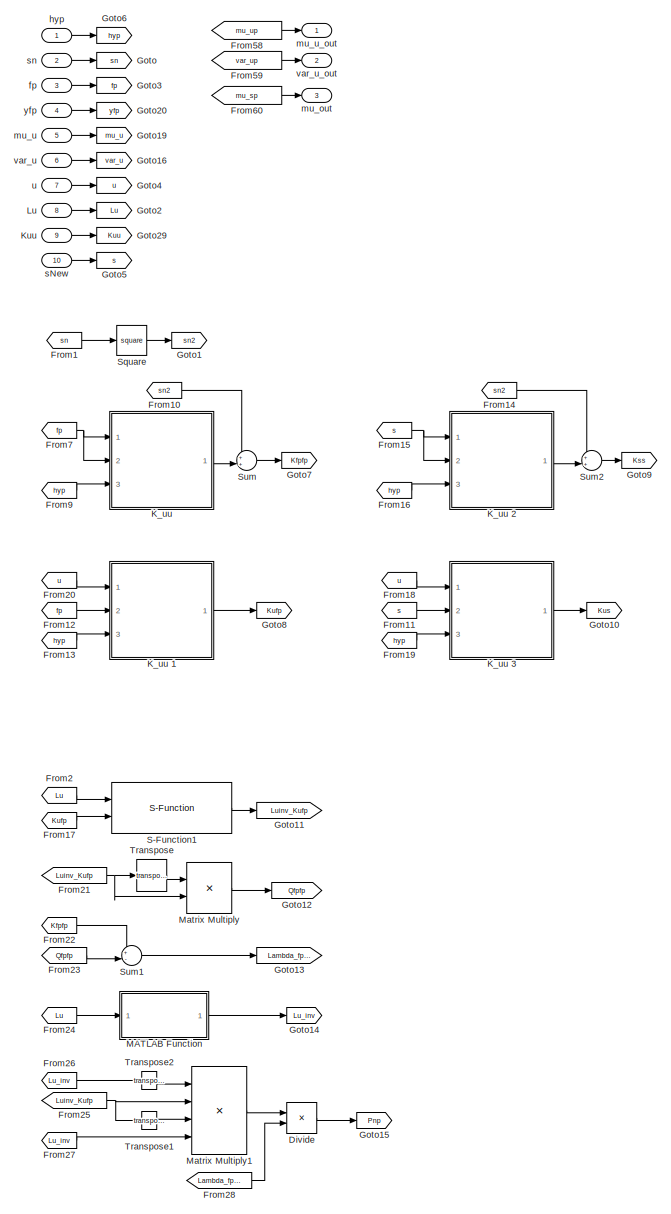
[diagram: Subsystem1 - part 1/2, full width, top band]
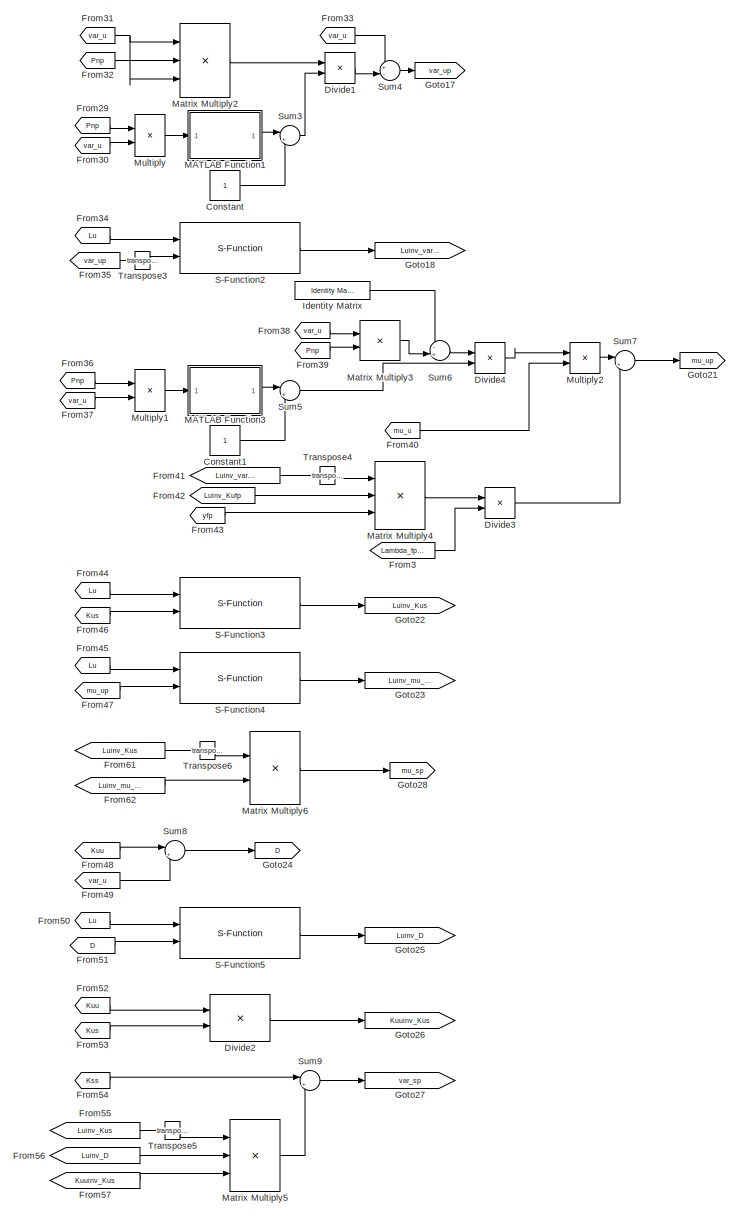
[diagram: Subsystem1 - part 2/2, full width, bottom band]
BLOCK [SubSystem] Subsystem1
  Commented = on
  Ports = [10, 3]
  RequestExecContextInheritance = off
BLOCK [Constant] Subsystem1/Constant
BLOCK [Constant] Subsystem1/Constant1
BLOCK [Product] Subsystem1/Divide
  InputSameDT = off
  Inputs = */
  OutDataTypeStr = Inherit: Inherit via internal rule
  Ports = [2, 1]
  RndMeth = Floor
  SaturateOnIntegerOverflow = off
BLOCK [Product] Subsystem1/Divide1
  InputSameDT = off
  Inputs = */
  OutDataTypeStr = Inherit: Inherit via internal rule
  Ports = [2, 1]
  RndMeth = Floor
  SaturateOnIntegerOverflow = off
BLOCK [Product] Subsystem1/Divide2
  InputSameDT = off
  Inputs = /*
  Multiplication = Matrix(*)
  OutDataTypeStr = Inherit: Inherit via internal rule
  Ports = [2, 1]
  RndMeth = Floor
  SaturateOnIntegerOverflow = off
BLOCK [Product] Subsystem1/Divide3
  InputSameDT = off
  Inputs = */
  OutDataTypeStr = Inherit: Inherit via internal rule
  Ports = [2, 1]
  RndMeth = Floor
  SaturateOnIntegerOverflow = off
BLOCK [Product] Subsystem1/Divide4
  InputSameDT = off
  Inputs = */
  OutDataTypeStr = Inherit: Inherit via internal rule
  Ports = [2, 1]
  RndMeth = Floor
  SaturateOnIntegerOverflow = off
BLOCK [From] Subsystem1/From1
  GotoTag = sn
BLOCK [From] Subsystem1/From10
  GotoTag = sn2
BLOCK [From] Subsystem1/From11
  GotoTag = s
BLOCK [From] Subsystem1/From12
  GotoTag = fp
BLOCK [From] Subsystem1/From13
  GotoTag = hyp
BLOCK [From] Subsystem1/From14
  GotoTag = sn2
BLOCK [From] Subsystem1/From15
  GotoTag = s
BLOCK [From] Subsystem1/From16
  GotoTag = hyp
BLOCK [From] Subsystem1/From17
  GotoTag = Kufp
BLOCK [From] Subsystem1/From18
  GotoTag = u
BLOCK [From] Subsystem1/From19
  GotoTag = hyp
BLOCK [From] Subsystem1/From2
  GotoTag = Lu
BLOCK [From] Subsystem1/From20
  GotoTag = u
BLOCK [From] Subsystem1/From21
  GotoTag = Luinv_Kufp
BLOCK [From] Subsystem1/From22
  GotoTag = Kfpfp
BLOCK [From] Subsystem1/From23
  GotoTag = Qfpfp
BLOCK [From] Subsystem1/From24
  GotoTag = Lu
BLOCK [From] Subsystem1/From25
  GotoTag = Luinv_Kufp
BLOCK [From] Subsystem1/From26
  GotoTag = Lu_inv
BLOCK [From] Subsystem1/From27
  GotoTag = Lu_inv
BLOCK [From] Subsystem1/From28
  GotoTag = Lambda_fpfp
BLOCK [From] Subsystem1/From29
  GotoTag = Pnp
BLOCK [From] Subsystem1/From3
  GotoTag = Lambda_fpfp
BLOCK [From] Subsystem1/From30
  GotoTag = var_u
BLOCK [From] Subsystem1/From31
  GotoTag = var_u
BLOCK [From] Subsystem1/From32
  GotoTag = Pnp
BLOCK [From] Subsystem1/From33
  GotoTag = var_u
BLOCK [From] Subsystem1/From34
  GotoTag = Lu
BLOCK [From] Subsystem1/From35
  GotoTag = var_up
BLOCK [From] Subsystem1/From36
  GotoTag = Pnp
BLOCK [From] Subsystem1/From37
  GotoTag = var_u
BLOCK [From] Subsystem1/From38
  GotoTag = var_u
BLOCK [From] Subsystem1/From39
  GotoTag = Pnp
BLOCK [From] Subsystem1/From40
  GotoTag = mu_u
BLOCK [From] Subsystem1/From41
  GotoTag = Luinv_var_upT
BLOCK [From] Subsystem1/From42
  GotoTag = Luinv_Kufp
BLOCK [From] Subsystem1/From43
  GotoTag = yfp
BLOCK [From] Subsystem1/From44
  GotoTag = Lu
BLOCK [From] Subsystem1/From45
  GotoTag = Lu
BLOCK [From] Subsystem1/From46
  GotoTag = Kus
BLOCK [From] Subsystem1/From47
  GotoTag = mu_up
BLOCK [From] Subsystem1/From48
  GotoTag = Kuu
BLOCK [From] Subsystem1/From49
  GotoTag = var_u
BLOCK [From] Subsystem1/From50
  GotoTag = Lu
BLOCK [From] Subsystem1/From51
  GotoTag = D
BLOCK [From] Subsystem1/From52
  GotoTag = Kuu
BLOCK [From] Subsystem1/From53
  GotoTag = Kus
BLOCK [From] Subsystem1/From54
  GotoTag = Kss
BLOCK [From] Subsystem1/From55
  GotoTag = Luinv_Kus
BLOCK [From] Subsystem1/From56
  GotoTag = Luinv_D
BLOCK [From] Subsystem1/From57
  GotoTag = Kuuinv_Kus
BLOCK [From] Subsystem1/From58
  GotoTag = mu_up
BLOCK [From] Subsystem1/From59
  GotoTag = var_up
BLOCK [From] Subsystem1/From60
  GotoTag = mu_sp
BLOCK [From] Subsystem1/From61
  GotoTag = Luinv_Kus
BLOCK [From] Subsystem1/From62
  GotoTag = Luinv_mu_up
BLOCK [From] Subsystem1/From7
  GotoTag = fp
BLOCK [From] Subsystem1/From9
  GotoTag = hyp
BLOCK [Goto] Subsystem1/Goto
  GotoTag = sn
BLOCK [Goto] Subsystem1/Goto1
  GotoTag = sn2
BLOCK [Goto] Subsystem1/Goto10
  GotoTag = Kus
BLOCK [Goto] Subsystem1/Goto11
  GotoTag = Luinv_Kufp
BLOCK [Goto] Subsystem1/Goto12
  GotoTag = Qfpfp
BLOCK [Goto] Subsystem1/Goto13
  GotoTag = Lambda_fpfp
BLOCK [Goto] Subsystem1/Goto14
  GotoTag = Lu_inv
BLOCK [Goto] Subsystem1/Goto15
  GotoTag = Pnp
BLOCK [Goto] Subsystem1/Goto16
  GotoTag = var_u
BLOCK [Goto] Subsystem1/Goto17
  GotoTag = var_up
BLOCK [Goto] Subsystem1/Goto18
  GotoTag = Luinv_var_upT
BLOCK [Goto] Subsystem1/Goto19
  GotoTag = mu_u
BLOCK [Goto] Subsystem1/Goto2
  GotoTag = Lu
BLOCK [Goto] Subsystem1/Goto20
  GotoTag = yfp
BLOCK [Goto] Subsystem1/Goto21
  GotoTag = mu_up
BLOCK [Goto] Subsystem1/Goto22
  GotoTag = Luinv_Kus
BLOCK [Goto] Subsystem1/Goto23
  GotoTag = Luinv_mu_up
BLOCK [Goto] Subsystem1/Goto24
  GotoTag = D
BLOCK [Goto] Subsystem1/Goto25
  GotoTag = Luinv_D
BLOCK [Goto] Subsystem1/Goto26
  GotoTag = Kuuinv_Kus
BLOCK [Goto] Subsystem1/Goto27
  GotoTag = var_sp
BLOCK [Goto] Subsystem1/Goto28
  GotoTag = mu_sp
BLOCK [Goto] Subsystem1/Goto29
  GotoTag = Kuu
BLOCK [Goto] Subsystem1/Goto3
  GotoTag = fp
BLOCK [Goto] Subsystem1/Goto4
  GotoTag = u
BLOCK [Goto] Subsystem1/Goto5
  GotoTag = s
BLOCK [Goto] Subsystem1/Goto6
  GotoTag = hyp
BLOCK [Goto] Subsystem1/Goto7
  GotoTag = Kfpfp
BLOCK [Goto] Subsystem1/Goto8
  GotoTag = Kufp
BLOCK [Goto] Subsystem1/Goto9
  GotoTag = Kss
BLOCK [Reference] Subsystem1/Identity Matrix  REF=dspmtrx3/Identity Matrix
  Ports = [0, 1]
  SourceBlock = dspmtrx3/Identity Matrix
  SourceProductBaseCode = DS
  SourceProductName = DSP System Toolbox
  SourceType = Identity Matrix
BLOCK [SubSystem] Subsystem1/K_uu 
  ErrorFcn = Stateflow.Translate.translate
  PermitHierarchicalResolution = ExplicitOnly
  Ports = [3, 1]
  RequestExecContextInheritance = off
  SFBlockType = MATLAB Function
  TreatAsAtomicUnit = on
BLOCK [Demux] Subsystem1/K_uu / Demux 
  Outputs = 1
  Ports = [1, 1]
BLOCK [S-Function] Subsystem1/K_uu / SFunction 
  EnableBusSupport = on
  FunctionName = sf_sfun
  PortCounts = [3 2]
  Ports = [3, 2]
  SFcnIsStateOwnerBlock = off
  SFunctionDeploymentMode = off
  Tag = Stateflow S-Function TFlex_IFITC 8
BLOCK [Terminator] Subsystem1/K_uu / Terminator 
BLOCK [Outport] Subsystem1/K_uu /K
  IconDisplay = Port number
BLOCK [Inport] Subsystem1/K_uu /hyp
  IconDisplay = Port number
  Port = 3
BLOCK [Inport] Subsystem1/K_uu /x1
  IconDisplay = Port number
BLOCK [Inport] Subsystem1/K_uu /x2
  IconDisplay = Port number
  Port = 2
BLOCK [SubSystem] Subsystem1/K_uu 1
  ErrorFcn = Stateflow.Translate.translate
  PermitHierarchicalResolution = ExplicitOnly
  Ports = [3, 1]
  RequestExecContextInheritance = off
  SFBlockType = MATLAB Function
  TreatAsAtomicUnit = on
BLOCK [Demux] Subsystem1/K_uu 1/ Demux 
  Outputs = 1
  Ports = [1, 1]
BLOCK [S-Function] Subsystem1/K_uu 1/ SFunction 
  EnableBusSupport = on
  FunctionName = sf_sfun
  PortCounts = [3 2]
  Ports = [3, 2]
  SFcnIsStateOwnerBlock = off
  SFunctionDeploymentMode = off
  Tag = Stateflow S-Function TFlex_IFITC 10
BLOCK [Terminator] Subsystem1/K_uu 1/ Terminator 
BLOCK [Outport] Subsystem1/K_uu 1/K
  IconDisplay = Port number
BLOCK [Inport] Subsystem1/K_uu 1/hyp
  IconDisplay = Port number
  Port = 3
BLOCK [Inport] Subsystem1/K_uu 1/x1
  IconDisplay = Port number
BLOCK [Inport] Subsystem1/K_uu 1/x2
  IconDisplay = Port number
  Port = 2
BLOCK [SubSystem] Subsystem1/K_uu 2
  ErrorFcn = Stateflow.Translate.translate
  PermitHierarchicalResolution = ExplicitOnly
  Ports = [3, 1]
  RequestExecContextInheritance = off
  SFBlockType = MATLAB Function
  TreatAsAtomicUnit = on
BLOCK [Demux] Subsystem1/K_uu 2/ Demux 
  Outputs = 1
  Ports = [1, 1]
BLOCK [S-Function] Subsystem1/K_uu 2/ SFunction 
  EnableBusSupport = on
  FunctionName = sf_sfun
  PortCounts = [3 2]
  Ports = [3, 2]
  SFcnIsStateOwnerBlock = off
  SFunctionDeploymentMode = off
  Tag = Stateflow S-Function TFlex_IFITC 11
BLOCK [Terminator] Subsystem1/K_uu 2/ Terminator 
BLOCK [Outport] Subsystem1/K_uu 2/K
  IconDisplay = Port number
BLOCK [Inport] Subsystem1/K_uu 2/hyp
  IconDisplay = Port number
  Port = 3
BLOCK [Inport] Subsystem1/K_uu 2/x1
  IconDisplay = Port number
BLOCK [Inport] Subsystem1/K_uu 2/x2
  IconDisplay = Port number
  Port = 2
BLOCK [SubSystem] Subsystem1/K_uu 3
  ErrorFcn = Stateflow.Translate.translate
  PermitHierarchicalResolution = ExplicitOnly
  Ports = [3, 1]
  RequestExecContextInheritance = off
  SFBlockType = MATLAB Function
  TreatAsAtomicUnit = on
BLOCK [Demux] Subsystem1/K_uu 3/ Demux 
  Outputs = 1
  Ports = [1, 1]
BLOCK [S-Function] Subsystem1/K_uu 3/ SFunction 
  EnableBusSupport = on
  FunctionName = sf_sfun
  PortCounts = [3 2]
  Ports = [3, 2]
  SFcnIsStateOwnerBlock = off
  SFunctionDeploymentMode = off
  Tag = Stateflow S-Function TFlex_IFITC 12
BLOCK [Terminator] Subsystem1/K_uu 3/ Terminator 
BLOCK [Outport] Subsystem1/K_uu 3/K
  IconDisplay = Port number
BLOCK [Inport] Subsystem1/K_uu 3/hyp
  IconDisplay = Port number
  Port = 3
BLOCK [Inport] Subsystem1/K_uu 3/x1
  IconDisplay = Port number
BLOCK [Inport] Subsystem1/K_uu 3/x2
  IconDisplay = Port number
  Port = 2
BLOCK [Inport] Subsystem1/Kuu
  IconDisplay = Port number
  Port = 9
BLOCK [Inport] Subsystem1/Lu
  IconDisplay = Port number
  Port = 8
BLOCK [SubSystem] Subsystem1/MATLAB Function
  ErrorFcn = Stateflow.Translate.translate
  PermitHierarchicalResolution = ExplicitOnly
  Ports = [1, 1]
  RequestExecContextInheritance = off
  SFBlockType = MATLAB Function
  TreatAsAtomicUnit = on
BLOCK [Demux] Subsystem1/MATLAB Function/ Demux 
  Outputs = 1
  Ports = [1, 1]
BLOCK [S-Function] Subsystem1/MATLAB Function/ SFunction 
  EnableBusSupport = on
  FunctionName = sf_sfun
  PortCounts = [1 2]
  Ports = [1, 2]
  SFcnIsStateOwnerBlock = off
  SFunctionDeploymentMode = off
  Tag = Stateflow S-Function TFlex_IFITC 13
BLOCK [Terminator] Subsystem1/MATLAB Function/ Terminator 
BLOCK [Inport] Subsystem1/MATLAB Function/Lu
  IconDisplay = Port number
BLOCK [Outport] Subsystem1/MATLAB Function/Lu_inv
  IconDisplay = Port number
BLOCK [SubSystem] Subsystem1/MATLAB Function1
  ErrorFcn = Stateflow.Translate.translate
  PermitHierarchicalResolution = ExplicitOnly
  Ports = [1, 1]
  RequestExecContextInheritance = off
  SFBlockType = MATLAB Function
  TreatAsAtomicUnit = on
BLOCK [Demux] Subsystem1/MATLAB Function1/ Demux 
  Outputs = 1
  Ports = [1, 1]
BLOCK [S-Function] Subsystem1/MATLAB Function1/ SFunction 
  EnableBusSupport = on
  FunctionName = sf_sfun
  PortCounts = [1 2]
  Ports = [1, 2]
  SFcnIsStateOwnerBlock = off
  SFunctionDeploymentMode = off
  Tag = Stateflow S-Function TFlex_IFITC 14
BLOCK [Terminator] Subsystem1/MATLAB Function1/ Terminator 
BLOCK [Inport] Subsystem1/MATLAB Function1/u
  IconDisplay = Port number
BLOCK [Outport] Subsystem1/MATLAB Function1/y
  IconDisplay = Port number
BLOCK [SubSystem] Subsystem1/MATLAB Function3
  ErrorFcn = Stateflow.Translate.translate
  PermitHierarchicalResolution = ExplicitOnly
  Ports = [1, 1]
  RequestExecContextInheritance = off
  SFBlockType = MATLAB Function
  TreatAsAtomicUnit = on
BLOCK [Demux] Subsystem1/MATLAB Function3/ Demux 
  Outputs = 1
  Ports = [1, 1]
BLOCK [S-Function] Subsystem1/MATLAB Function3/ SFunction 
  EnableBusSupport = on
  FunctionName = sf_sfun
  PortCounts = [1 2]
  Ports = [1, 2]
  SFcnIsStateOwnerBlock = off
  SFunctionDeploymentMode = off
  Tag = Stateflow S-Function TFlex_IFITC 15
BLOCK [Terminator] Subsystem1/MATLAB Function3/ Terminator 
BLOCK [Inport] Subsystem1/MATLAB Function3/u
  IconDisplay = Port number
BLOCK [Outport] Subsystem1/MATLAB Function3/y
  IconDisplay = Port number
BLOCK [Product] Subsystem1/Matrix Multiply
  InputSameDT = off
  Multiplication = Matrix(*)
  OutDataTypeStr = Inherit: Inherit via internal rule
  Ports = [2, 1]
  RndMeth = Floor
  SaturateOnIntegerOverflow = off
BLOCK [Product] Subsystem1/Matrix Multiply1
  InputSameDT = off
  Inputs = 4
  Multiplication = Matrix(*)
  OutDataTypeStr = Inherit: Inherit via internal rule
  Ports = [4, 1]
  RndMeth = Floor
  SaturateOnIntegerOverflow = off
BLOCK [Product] Subsystem1/Matrix Multiply2
  InputSameDT = off
  Inputs = 3
  Multiplication = Matrix(*)
  OutDataTypeStr = Inherit: Inherit via internal rule
  Ports = [3, 1]
  RndMeth = Floor
  SaturateOnIntegerOverflow = off
BLOCK [Product] Subsystem1/Matrix Multiply3
  InputSameDT = off
  Multiplication = Matrix(*)
  OutDataTypeStr = Inherit: Inherit via internal rule
  Ports = [2, 1]
  RndMeth = Floor
  SaturateOnIntegerOverflow = off
BLOCK [Product] Subsystem1/Matrix Multiply4
  InputSameDT = off
  Inputs = 3
  Multiplication = Matrix(*)
  OutDataTypeStr = Inherit: Inherit via internal rule
  Ports = [3, 1]
  RndMeth = Floor
  SaturateOnIntegerOverflow = off
BLOCK [Product] Subsystem1/Matrix Multiply5
  InputSameDT = off
  Inputs = 3
  Multiplication = Matrix(*)
  OutDataTypeStr = Inherit: Inherit via internal rule
  Ports = [3, 1]
  RndMeth = Floor
  SaturateOnIntegerOverflow = off
BLOCK [Product] Subsystem1/Matrix Multiply6
  InputSameDT = off
  Multiplication = Matrix(*)
  OutDataTypeStr = Inherit: Inherit via internal rule
  Ports = [2, 1]
  RndMeth = Floor
  SaturateOnIntegerOverflow = off
BLOCK [Product] Subsystem1/Multiply
  InputSameDT = off
  OutDataTypeStr = Inherit: Inherit via internal rule
  Ports = [2, 1]
  RndMeth = Floor
  SaturateOnIntegerOverflow = off
BLOCK [Product] Subsystem1/Multiply1
  InputSameDT = off
  OutDataTypeStr = Inherit: Inherit via internal rule
  Ports = [2, 1]
  RndMeth = Floor
  SaturateOnIntegerOverflow = off
BLOCK [Product] Subsystem1/Multiply2
  InputSameDT = off
  Multiplication = Matrix(*)
  OutDataTypeStr = Inherit: Inherit via internal rule
  Ports = [2, 1]
  RndMeth = Floor
  SaturateOnIntegerOverflow = off
BLOCK [S-Function] Subsystem1/S-Function1
  EnableBusSupport = off
  FunctionName = solve_lowerTriangular_sfun
  Parameters = Nkeep+1
  Ports = [2, 1]
  SFcnIsStateOwnerBlock = off
  SFunctionDeploymentMode = off
BLOCK [S-Function] Subsystem1/S-Function2
  EnableBusSupport = off
  FunctionName = solve_lowerTriangMatrix_sfun
  Parameters = Nkeep+1
  Ports = [2, 1]
  SFcnIsStateOwnerBlock = off
  SFunctionDeploymentMode = off
BLOCK [S-Function] Subsystem1/S-Function3
  EnableBusSupport = off
  FunctionName = solve_lowerTriangular_sfun
  Parameters = Nkeep+1
  Ports = [2, 1]
  SFcnIsStateOwnerBlock = off
  SFunctionDeploymentMode = off
BLOCK [S-Function] Subsystem1/S-Function4
  EnableBusSupport = off
  FunctionName = solve_lowerTriangular_sfun
  Parameters = Nkeep+1
  Ports = [2, 1]
  SFcnIsStateOwnerBlock = off
  SFunctionDeploymentMode = off
BLOCK [S-Function] Subsystem1/S-Function5
  EnableBusSupport = off
  FunctionName = solve_lowerTriangMatrix_sfun
  Parameters = Nkeep+1
  Ports = [2, 1]
  SFcnIsStateOwnerBlock = off
  SFunctionDeploymentMode = off
BLOCK [Math] Subsystem1/Square
  Operator = square
  Ports = [1, 1]
BLOCK [Sum] Subsystem1/Sum
  IconShape = round
  InputSameDT = off
  Inputs = ++|
  OutDataTypeStr = Inherit: Inherit via internal rule
  Ports = [2, 1]
  SaturateOnIntegerOverflow = off
BLOCK [Sum] Subsystem1/Sum1
  IconShape = round
  InputSameDT = off
  Inputs = +-|
  OutDataTypeStr = Inherit: Inherit via internal rule
  Ports = [2, 1]
  SaturateOnIntegerOverflow = off
BLOCK [Sum] Subsystem1/Sum2
  IconShape = round
  InputSameDT = off
  Inputs = ++|
  OutDataTypeStr = Inherit: Inherit via internal rule
  Ports = [2, 1]
  SaturateOnIntegerOverflow = off
BLOCK [Sum] Subsystem1/Sum3
  IconShape = round
  InputSameDT = off
  Inputs = |++
  OutDataTypeStr = Inherit: Inherit via internal rule
  Ports = [2, 1]
  SaturateOnIntegerOverflow = off
BLOCK [Sum] Subsystem1/Sum4
  IconShape = round
  InputSameDT = off
  Inputs = +-|
  OutDataTypeStr = Inherit: Inherit via internal rule
  Ports = [2, 1]
  SaturateOnIntegerOverflow = off
BLOCK [Sum] Subsystem1/Sum5
  IconShape = round
  InputSameDT = off
  Inputs = |++
  OutDataTypeStr = Inherit: Inherit via internal rule
  Ports = [2, 1]
  SaturateOnIntegerOverflow = off
BLOCK [Sum] Subsystem1/Sum6
  IconShape = round
  InputSameDT = off
  Inputs = -+|
  OutDataTypeStr = Inherit: Inherit via internal rule
  Ports = [2, 1]
  SaturateOnIntegerOverflow = off
BLOCK [Sum] Subsystem1/Sum7
  IconShape = round
  InputSameDT = off
  Inputs = |++
  OutDataTypeStr = Inherit: Inherit via internal rule
  Ports = [2, 1]
  SaturateOnIntegerOverflow = off
BLOCK [Sum] Subsystem1/Sum8
  IconShape = round
  InputSameDT = off
  Inputs = |+-
  OutDataTypeStr = Inherit: Inherit via internal rule
  Ports = [2, 1]
  SaturateOnIntegerOverflow = off
BLOCK [Sum] Subsystem1/Sum9
  IconShape = round
  InputSameDT = off
  Inputs = |+-
  OutDataTypeStr = Inherit: Inherit via internal rule
  Ports = [2, 1]
  SaturateOnIntegerOverflow = off
BLOCK [Math] Subsystem1/Transpose
  Operator = transpose
  Ports = [1, 1]
BLOCK [Math] Subsystem1/Transpose1
  Operator = transpose
  Ports = [1, 1]
BLOCK [Math] Subsystem1/Transpose2
  Operator = transpose
  Ports = [1, 1]
BLOCK [Math] Subsystem1/Transpose3
  Operator = transpose
  Ports = [1, 1]
BLOCK [Math] Subsystem1/Transpose4
  Operator = transpose
  Ports = [1, 1]
BLOCK [Math] Subsystem1/Transpose5
  Operator = transpose
  Ports = [1, 1]
BLOCK [Math] Subsystem1/Transpose6
  Operator = transpose
  Ports = [1, 1]
BLOCK [Inport] Subsystem1/fp
  IconDisplay = Port number
  Port = 3
BLOCK [Inport] Subsystem1/hyp
  IconDisplay = Port number
BLOCK [Outport] Subsystem1/mu_out
  IconDisplay = Port number
  Port = 3
BLOCK [Inport] Subsystem1/mu_u
  IconDisplay = Port number
  Port = 5
BLOCK [Outport] Subsystem1/mu_u_out
  IconDisplay = Port number
BLOCK [Inport] Subsystem1/sNew
  IconDisplay = Port number
  Port = 10
BLOCK [Inport] Subsystem1/sn
  IconDisplay = Port number
  Port = 2
BLOCK [Inport] Subsystem1/u
  IconDisplay = Port number
  Port = 7
BLOCK [Inport] Subsystem1/var_u
  IconDisplay = Port number
  Port = 6
BLOCK [Outport] Subsystem1/var_u_out
  IconDisplay = Port number
  Port = 2
BLOCK [Inport] Subsystem1/yfp
  IconDisplay = Port number
  Port = 4
BLOCK [Sum] Sum
  IconShape = round
  InputSameDT = off
  Inputs = |+-
  OutDataTypeStr = Inherit: Inherit via internal rule
  Ports = [2, 1]
  SaturateOnIntegerOverflow = off
BLOCK [Sum] Sum1
  IconShape = round
  InputSameDT = off
  Inputs = ++|
  OutDataTypeStr = Inherit: Inherit via internal rule
  Ports = [2, 1]
  SaturateOnIntegerOverflow = off
BLOCK [Sum] Sum10
  IconShape = round
  InputSameDT = off
  Inputs = |+-
  OutDataTypeStr = Inherit: Inherit via internal rule
  Ports = [2, 1]
  SaturateOnIntegerOverflow = off
BLOCK [Sum] Sum11
  IconShape = round
  InputSameDT = off
  Inputs = ++|
  OutDataTypeStr = Inherit: Inherit via internal rule
  Ports = [2, 1]
  SaturateOnIntegerOverflow = off
BLOCK [Sum] Sum2
  IconShape = round
  InputSameDT = off
  Inputs = |+-
  OutDataTypeStr = Inherit: Inherit via internal rule
  Ports = [2, 1]
  SaturateOnIntegerOverflow = off
BLOCK [Sum] Sum3
  IconShape = round
  InputSameDT = off
  Inputs = |++
  OutDataTypeStr = Inherit: Inherit via internal rule
  Ports = [2, 1]
  SaturateOnIntegerOverflow = off
BLOCK [Sum] Sum4
  IconShape = round
  InputSameDT = off
  Inputs = |+-
  OutDataTypeStr = Inherit: Inherit via internal rule
  Ports = [2, 1]
  SaturateOnIntegerOverflow = off
BLOCK [Sum] Sum6
  IconShape = round
  InputSameDT = off
  Inputs = |+-
  OutDataTypeStr = Inherit: Inherit via internal rule
  Ports = [2, 1]
  SaturateOnIntegerOverflow = off
BLOCK [Sum] Sum7
  IconShape = round
  InputSameDT = off
  Inputs = |+-
  OutDataTypeStr = Inherit: Inherit via internal rule
  Ports = [2, 1]
  SaturateOnIntegerOverflow = off
BLOCK [Sum] Sum8
  IconShape = round
  InputSameDT = off
  Inputs = ++|
  OutDataTypeStr = Inherit: Inherit via internal rule
  Ports = [2, 1]
  SaturateOnIntegerOverflow = off
BLOCK [SubSystem] TDfhan
  Ports = [2, 1]
  RequestExecContextInheritance = off
BLOCK [BusCreator] TDfhan/Bus Creator
  DisplayOption = bar
  InheritFromInputs = on
  Inputs = 3
  Ports = [3, 1]
BLOCK [Constant] TDfhan/Constant
  SampleTime = ts
  Value = r
BLOCK [Constant] TDfhan/Constant1
  SampleTime = ts
  Value = h
BLOCK [DiscreteIntegrator] TDfhan/Discrete-Time Integrator
  ICPrevOutput = DiscIntNeverNeededParam
  ICPrevScaledInput = DiscIntNeverNeededParam
  InitialConditionSetting = Auto
  Ports = [1, 1]
  SampleTime = ts
  gainval = 1
BLOCK [DiscreteIntegrator] TDfhan/Discrete-Time Integrator1
  ICPrevOutput = DiscIntNeverNeededParam
  ICPrevScaledInput = DiscIntNeverNeededParam
  InitialCondition = -24
  InitialConditionSetting = Auto
  InitialConditionSource = external
  Ports = [2, 1]
  SampleTime = ts
  gainval = 1
BLOCK [SubSystem] TDfhan/MATLAB Function2
  ErrorFcn = Stateflow.Translate.translate
  PermitHierarchicalResolution = ExplicitOnly
  Ports = [4, 1]
  RequestExecContextInheritance = off
  SFBlockType = MATLAB Function
  TreatAsAtomicUnit = on
BLOCK [Demux] TDfhan/MATLAB Function2/ Demux 
  Outputs = 1
  Ports = [1, 1]
BLOCK [S-Function] TDfhan/MATLAB Function2/ SFunction 
  EnableBusSupport = on
  FunctionName = sf_sfun
  PortCounts = [4 2]
  Ports = [4, 2]
  SFcnIsStateOwnerBlock = off
  SFunctionDeploymentMode = off
  Tag = Stateflow S-Function TFlex_IFITC 7
BLOCK [Terminator] TDfhan/MATLAB Function2/ Terminator 
BLOCK [Inport] TDfhan/MATLAB Function2/h0
  IconDisplay = Port number
  Port = 4
BLOCK [Outport] TDfhan/MATLAB Function2/output
  IconDisplay = Port number
BLOCK [Inport] TDfhan/MATLAB Function2/r0
  IconDisplay = Port number
  Port = 3
BLOCK [Inport] TDfhan/MATLAB Function2/v1
  IconDisplay = Port number
BLOCK [Inport] TDfhan/MATLAB Function2/v2
  IconDisplay = Port number
  Port = 2
BLOCK [Inport] TDfhan/P_init
  IconDisplay = Port number
  Port = 2
BLOCK [Scope] TDfhan/Scope
  Floating = off
  NumInputPorts = 3
  Ports = [3]
  ScopeSpecificationString = Simulink.scopes.TimeScopeBlockCfg('CurrentConfiguration', extmgr.ConfigurationSet(extmgr.Configuration('Core','General UI',true),extmgr.Configuration('Core','Source UI',true),extmgr.Configuration('Sources','WiredSimulink',true,'DataLoggingVariableName','ScopeData1'),extmgr.Configuration('Visuals','Time Domain',true,'SerializedDisplays',{struct('MinYLimReal','-0.22989','MaxYLimReal','0.25408','YLab...<+2795ch>
BLOCK [Sum] TDfhan/Sum
  IconShape = round
  InputSameDT = off
  Inputs = +-|
  OutDataTypeStr = Inherit: Inherit via internal rule
  Ports = [2, 1]
  SaturateOnIntegerOverflow = off
BLOCK [Inport] TDfhan/V
  IconDisplay = Port number
BLOCK [Outport] TDfhan/ref
  IconDisplay = Port number
BLOCK [TransferFcn] TFlex
  ContinuousStateAttributes = 'angle'
  Denominator = Pden
  Numerator = Pnum
BLOCK [ToWorkspace] To Workspace1
  FixptAsFi = on
  MaxDataPoints = inf
  Ports = [1]
  SampleTime = -1
  Save2DSignal = 3-D array (concatenate along third dimension)
  VariableName = reference
BLOCK [ToWorkspace] To Workspace10
  FixptAsFi = on
  MaxDataPoints = inf
  Ports = [1]
  SampleTime = -1
  Save2DSignal = 3-D array (concatenate along third dimension)
  VariableName = noise
BLOCK [ToWorkspace] To Workspace11
  FixptAsFi = on
  MaxDataPoints = inf
  Ports = [1]
  SampleTime = -1
  Save2DSignal = 3-D array (concatenate along third dimension)
  VariableName = setpointCurrent
BLOCK [ToWorkspace] To Workspace2
  FixptAsFi = on
  MaxDataPoints = inf
  Ports = [1]
  SampleTime = -1
  Save2DSignal = 3-D array (concatenate along third dimension)
  VariableName = error
BLOCK [ToWorkspace] To Workspace3
  FixptAsFi = on
  MaxDataPoints = inf
  Ports = [1]
  SampleTime = -1
  Save2DSignal = 3-D array (concatenate along third dimension)
  VariableName = trainingInput
BLOCK [ToWorkspace] To Workspace4
  FixptAsFi = on
  MaxDataPoints = inf
  Ports = [1]
  SampleTime = -1
  Save2DSignal = 3-D array (concatenate along third dimension)
  VariableName = trainingTarget
BLOCK [ToWorkspace] To Workspace5
  FixptAsFi = on
  MaxDataPoints = inf
  Ports = [1]
  SampleTime = -1
  Save2DSignal = 3-D array (concatenate along third dimension)
  VariableName = controlOutput
BLOCK [ToWorkspace] To Workspace6
  FixptAsFi = on
  MaxDataPoints = inf
  Ports = [1]
  SampleTime = -1
  Save2DSignal = 3-D array (concatenate along third dimension)
  VariableName = FF_SSGP
BLOCK [ToWorkspace] To Workspace7
  FixptAsFi = on
  MaxDataPoints = inf
  Ports = [1]
  SampleTime = -1
  Save2DSignal = 3-D array (concatenate along third dimension)
  VariableName = FF_RBD
BLOCK [ToWorkspace] To Workspace8
  FixptAsFi = on
  MaxDataPoints = inf
  Ports = [1]
  SampleTime = -1
  Save2DSignal = 3-D array (concatenate along third dimension)
  VariableName = hyperParam
BLOCK [ToWorkspace] To Workspace9
  FixptAsFi = on
  MaxDataPoints = inf
  Ports = [1]
  SampleTime = -1
  Save2DSignal = 3-D array (concatenate along third dimension)
  VariableName = actualCurrent
BLOCK [UniformRandomNumber] Uniform Random Number1
  Maximum = 23
  Minimum = -23
  SampleTime = sp_ts
  Seed = seed
BLOCK [UnitDelay] Unit Delay1
  InputProcessing = Elements as channels (sample based)
  SampleTime = -1
BLOCK [UnitDelay] Unit Delay10
  Commented = on
  InputProcessing = Elements as channels (sample based)
  SampleTime = -1
BLOCK [UnitDelay] Unit Delay11
  Commented = on
  InputProcessing = Elements as channels (sample based)
  SampleTime = -1
BLOCK [UnitDelay] Unit Delay12
  Commented = on
  InputProcessing = Elements as channels (sample based)
  SampleTime = -1
BLOCK [UnitDelay] Unit Delay13
  Commented = on
  InputProcessing = Elements as channels (sample based)
  SampleTime = -1
BLOCK [UnitDelay] Unit Delay2
  InputProcessing = Elements as channels (sample based)
  SampleTime = -1
BLOCK [UnitDelay] Unit Delay3
  InputProcessing = Elements as channels (sample based)
  SampleTime = -1
BLOCK [UnitDelay] Unit Delay4
  InputProcessing = Elements as channels (sample based)
  SampleTime = -1
BLOCK [UnitDelay] Unit Delay5
  InputProcessing = Elements as channels (sample based)
  SampleTime = -1
BLOCK [UnitDelay] Unit Delay7
  Commented = on
  InputProcessing = Elements as channels (sample based)
  SampleTime = -1
BLOCK [UnitDelay] Unit Delay8
  Commented = on
  InputProcessing = Elements as channels (sample based)
  SampleTime = -1
BLOCK [UnitDelay] Unit Delay9
  Commented = on
  InputProcessing = Elements as channels (sample based)
  SampleTime = -1
BLOCK [Scope] control Output
  Floating = off
  NumInputPorts = 4
  Ports = [4]
  ScopeSpecificationString = Simulink.scopes.TimeScopeBlockCfg('CurrentConfiguration', extmgr.ConfigurationSet(extmgr.Configuration('Core','General UI',true),extmgr.Configuration('Core','Source UI',true),extmgr.Configuration('Sources','WiredSimulink',true,'DataLoggingVariableName','ScopeData3'),extmgr.Configuration('Visuals','Time Domain',true,'SerializedDisplays',{struct('MinYLimReal','-420.04539','MaxYLimReal','414.71353','...<+3479ch>
BLOCK [Scope] plant output
  Floating = off
  NumInputPorts = 3
  Ports = [3]
  ScopeSpecificationString = Simulink.scopes.TimeScopeBlockCfg('CurrentConfiguration', extmgr.ConfigurationSet(extmgr.Configuration('Core','General UI',true),extmgr.Configuration('Core','Source UI',true),extmgr.Configuration('Sources','WiredSimulink',true,'DataLoggingVariableName','ScopeData5'),extmgr.Configuration('Visuals','Time Domain',true,'SerializedDisplays',{struct('MinYLimReal','-33.18472','MaxYLimReal','29.71189','YL...<+2806ch>
BLOCK [Gain] slope
  Gain = 1/2
  OutDataTypeStr = Inherit: Inherit via internal rule
  ParamDataTypeStr = Inherit: Inherit via internal rule
  SaturateOnIntegerOverflow = off
ANNOTATION (root): Inducing point update
ANNOTATION (root): Level 1 Inference
ANNOTATION (root): Level 2 Inference
ANNOTATION (root): Scopes & Logging
LINE Band-Limited White Noise1:1 -> Sum8:1
LINE Band-Limited White Noise:1 -> Multiply2:1
LINE Bus Selector1:1 -> Sum:1
LINE Bus Selector4:1 -> plant output:1
LINE Bus Selector4:2 -> plant output:2
LINE Bus Selector4:3 -> plant output:3
LINE Bus Selector5:1 -> Setpoint:1
LINE Bus Selector5:2 -> Setpoint:2
LINE Bus Selector5:3 -> Setpoint:3
LINE Bus Selector:1 -> Sum4:1
NET Cogging/Gain:1 -> Cogging/Cogging [mA]:1, Cogging/Goto:1, Cogging/Scope:1
LINE Cogging/Position:1 -> Cogging/Sine Wave Function1:1
LINE Cogging/Sine Wave Function1:1 -> Cogging/Sum of Elements:1
LINE Cogging/Sum of Elements:1 -> Cogging/Gain:1
LINE Cogging:1 -> Sum10:2
LINE Constant10:1 -> Subsystem1:2
LINE Constant11:1 -> Subsystem1:1
LINE Constant1:1 -> MATLAB Function:2
LINE Constant2:1 -> MATLAB Function:1
LINE Constant3:1 -> MATLAB Function1:2
LINE Constant4:1 -> Multiport Switch:1
LINE Constant5:1 -> MATLAB Function1:1
LINE Constant6:1 -> Delay4:2
LINE Constant7:1 -> Subsystem:2
LINE Constant8:1 -> Multiport Switch:2
LINE Constant9:1 -> Subsystem:1
LINE Delay1:1 -> Sum10:1
LINE Delay3:1 -> Sum11:1
LINE Delay4:1 -> Sum6:1
NET Delay5:1 -> Skewsine Setpoint Generator:1, TDfhan:1
LINE Discrete-Time Integrator:1 -> Saturation1:1
LINE From10:1 -> To Workspace8:1
LINE From11:1 -> RBD FF1:1
LINE From13:1 -> To Workspace2:1
LINE From14:1 -> To Workspace5:1
LINE From15:1 -> To Workspace6:1
LINE From16:1 -> To Workspace7:1
LINE From17:1 -> Bus Selector5:1
LINE From18:1 -> To Workspace9:1
LINE From19:1 -> To Workspace11:1
LINE From1:1 -> MATLAB Function:4
LINE From20:1 -> Bus Selector4:1
LINE From21:1 -> To Workspace4:1
LINE From22:1 -> Gain2:1
LINE From23:1 -> IC4:1
LINE From24:1 -> Gain3:1
LINE From25:1 -> IC3:1
LINE From26:1 -> control Output:2
LINE From27:1 -> control Output:3
LINE From28:1 -> control Output:1
LINE From29:1 -> Delay4:1
LINE From2:1 -> IC:1
LINE From30:1 -> Subsystem:6
LINE From31:1 -> IC7:1
LINE From32:1 -> control Output:4
LINE From33:1 -> IC6:1
LINE From34:1 -> MATLAB Function1:7
LINE From35:1 -> To Workspace10:1
LINE From36:1 -> IC5:1
LINE From37:1 -> State Variable filter1:1
LINE From38:1 -> Subsystem:3
LINE From39:1 -> Subsystem:4
LINE From3:1 -> IC1:1
LINE From40:1 -> Unit Delay12:1
LINE From41:1 -> Unit Delay13:1
LINE From42:1 -> IC9:1
LINE From43:1 -> IC13:1
LINE From44:1 -> IC12:1
LINE From45:1 -> IC10:1
LINE From46:1 -> Subsystem1:10
LINE From47:1 -> IC11:1
NET From49:1 -> Scope:2, Sum2:1
LINE From4:1 -> IC8:1
NET From50:1 -> Scope:3, Sum2:2
LINE From51:1 -> RBD FF2:1
LINE From6:1 -> MATLAB Function1:4
LINE From7:1 -> MATLAB Function1:5
LINE From9:1 -> IC2:1
LINE From:1 -> MATLAB Function:3
LINE Gain2:1 -> To Workspace3:1
LINE Gain3:1 -> To Workspace1:1
LINE IC10:1 -> Subsystem1:6
LINE IC11:1 -> Subsystem1:7
LINE IC12:1 -> Subsystem1:8
LINE IC13:1 -> Subsystem1:9
LINE IC1:1 -> MATLAB Function:6
LINE IC2:1 -> MATLAB Function:7
LINE IC3:1 -> MATLAB Function:8
LINE IC4:1 -> MATLAB Function:9
LINE IC5:1 -> MATLAB Function1:6
LINE IC6:1 -> MATLAB Function1:3
LINE IC7:1 -> Subsystem:5
LINE IC8:1 -> Subsystem:7
LINE IC9:1 -> Subsystem1:5
LINE IC:1 -> MATLAB Function:5
LINE MATLAB Function1:1 -> Unit Delay1:1
LINE MATLAB Function1:2 -> Unit Delay2:1
LINE MATLAB Function1:3 -> Unit Delay3:1
LINE MATLAB Function1:4 -> Unit Delay4:1
LINE MATLAB Function1:5 -> Unit Delay5:1
LINE MATLAB Function:1 -> Goto6:1
LINE MATLAB Function:2 -> Goto2:1
LINE MATLAB Function:3 -> Multiply:1
NET Multiply2:1 -> Goto15:1, Sum7:2
NET Multiply:1 -> Goto10:1, Sum1:2
LINE Multiport Switch:1 -> Delay5:1
NET Numerical derivative/Angle [deg]:1 -> Numerical derivative/Bus Creator:1, Numerical derivative/Discrete Derivative:1, Numerical derivative/Numerical State:1
LINE Numerical derivative/Bus Creator:1 -> Numerical derivative/State [deg]:1
NET Numerical derivative/Discrete Derivative1:1 -> Numerical derivative/Bus Creator:3, Numerical derivative/Numerical State:3
NET Numerical derivative/Discrete Derivative:1 -> Numerical derivative/Bus Creator:2, Numerical derivative/Discrete Derivative1:1, Numerical derivative/Numerical State:2
LINE PID/Discrete Derivative:1 -> PID/Gain3:1
LINE PID/Discrete-Time Integrator2:1 -> PID/Gain2:1
LINE PID/Gain1:1 -> PID/Sum2:2
LINE PID/Gain2:1 -> PID/Sum2:1
LINE PID/Gain3:1 -> PID/Sum2:3
LINE PID/Lowpass:1 -> PID/Discrete Derivative:1
LINE PID/Sum2:1 -> PID/Control output:1
NET PID/e:1 -> PID/Discrete-Time Integrator2:1, PID/Gain1:1, PID/Lowpass:1
NET PID:1 -> Goto8:1, Sum11:2
LINE Position dependent noise:1 -> Multiply2:2
LINE Pulse Generator2:1 -> Sum3:1
NET Quantizer:1 -> Setpoint current [mA]:1, Sum7:1
LINE RBD FF/Demux:1 -> RBD FF/k_est:1
LINE RBD FF/Demux:2 -> RBD FF/d_est:1
LINE RBD FF/Demux:3 -> RBD FF/m_est:1
LINE RBD FF/Sum:1 -> RBD FF/rbd FF:1
LINE RBD FF/d_est:1 -> RBD FF/Sum:2
LINE RBD FF/k_est:1 -> RBD FF/Sum:1
LINE RBD FF/m_est:1 -> RBD FF/Sum:3
LINE RBD FF/r:1 -> RBD FF/Demux:1
LINE RBD FF1/Demux:1 -> RBD FF1/k_est:1
LINE RBD FF1/Demux:2 -> RBD FF1/d_est:1
LINE RBD FF1/Demux:3 -> RBD FF1/m_est:1
LINE RBD FF1/Sum:1 -> RBD FF1/rbd FF:1
LINE RBD FF1/d_est:1 -> RBD FF1/Sum:2
LINE RBD FF1/k_est:1 -> RBD FF1/Sum:1
LINE RBD FF1/m_est:1 -> RBD FF1/Sum:3
LINE RBD FF1/r:1 -> RBD FF1/Demux:1
LINE RBD FF1:1 -> Sum4:2
LINE RBD FF2/Demux:1 -> RBD FF2/k_est:1
LINE RBD FF2/Demux:2 -> RBD FF2/d_est:1
LINE RBD FF2/Demux:3 -> RBD FF2/m_est:1
LINE RBD FF2/Sum:1 -> RBD FF2/rbd FF:1
LINE RBD FF2/d_est:1 -> RBD FF2/Sum:2
LINE RBD FF2/k_est:1 -> RBD FF2/Sum:1
LINE RBD FF2/m_est:1 -> RBD FF2/Sum:3
LINE RBD FF2/r:1 -> RBD FF2/Demux:1
LINE RBD FF2:1 -> Sum6:2
NET RBD FF:1 -> Goto11:1, Sum1:1
NET Rate Transition:1 -> Cogging:1, Position dependent noise:1, Sum8:2
LINE Saturation1:1 -> Multiply:2
LINE Saturation:1 -> Quantizer:1
LINE Skewsine Setpoint Generator/Bus Creator:1 -> Skewsine Setpoint Generator/ref:1
LINE Skewsine Setpoint Generator/Delay:1 -> Skewsine Setpoint Generator/Subsystem:1
LINE Skewsine Setpoint Generator/Setpoint:1 -> Skewsine Setpoint Generator/Delay:1
LINE Skewsine Setpoint Generator/Subsystem/Clock:1 -> Skewsine Setpoint Generator/Subsystem/Sum6:3
LINE Skewsine Setpoint Generator/Subsystem/Constant1:1 -> Skewsine Setpoint Generator/Subsystem/Sum6:1
LINE Skewsine Setpoint Generator/Subsystem/Constant2:1 -> Skewsine Setpoint Generator/Subsystem/MATLAB Function:2
LINE Skewsine Setpoint Generator/Subsystem/Constant:1 -> Skewsine Setpoint Generator/Subsystem/Sum5:2
LINE Skewsine Setpoint Generator/Subsystem/Delay4:1 -> Skewsine Setpoint Generator/Subsystem/Sum5:1
LINE Skewsine Setpoint Generator/Subsystem/Delay:1 -> Skewsine Setpoint Generator/Subsystem/Sum:1
LINE Skewsine Setpoint Generator/Subsystem/Gain:1 -> Skewsine Setpoint Generator/Subsystem/Sum6:2
LINE Skewsine Setpoint Generator/Subsystem/MATLAB Function:1 -> Skewsine Setpoint Generator/Subsystem/Sum2:2
LINE Skewsine Setpoint Generator/Subsystem/MATLAB Function:2 -> Skewsine Setpoint Generator/Subsystem/r_dot:1
LINE Skewsine Setpoint Generator/Subsystem/MATLAB Function:3 -> Skewsine Setpoint Generator/Subsystem/r_ddot:1
LINE Skewsine Setpoint Generator/Subsystem/Rate Transition:1 -> Skewsine Setpoint Generator/Subsystem/Sum2:1
NET Skewsine Setpoint Generator/Subsystem/Sum2:1 -> Skewsine Setpoint Generator/Subsystem/Scope:2, Skewsine Setpoint Generator/Subsystem/r:1
NET Skewsine Setpoint Generator/Subsystem/Sum5:1 -> Skewsine Setpoint Generator/Subsystem/Delay4:1, Skewsine Setpoint Generator/Subsystem/Gain:1
LINE Skewsine Setpoint Generator/Subsystem/Sum6:1 -> Skewsine Setpoint Generator/Subsystem/MATLAB Function:3
LINE Skewsine Setpoint Generator/Subsystem/Sum:1 -> Skewsine Setpoint Generator/Subsystem/MATLAB Function:1
NET Skewsine Setpoint Generator/Subsystem/setpoint:1 -> Skewsine Setpoint Generator/Subsystem/Delay:1, Skewsine Setpoint Generator/Subsystem/Rate Transition:1, Skewsine Setpoint Generator/Subsystem/Scope:1, Skewsine Setpoint Generator/Subsystem/Sum:2
LINE Skewsine Setpoint Generator/Subsystem:1 -> Skewsine Setpoint Generator/Bus Creator:1
LINE Skewsine Setpoint Generator/Subsystem:2 -> Skewsine Setpoint Generator/Bus Creator:2
LINE Skewsine Setpoint Generator/Subsystem:3 -> Skewsine Setpoint Generator/Bus Creator:3
NET Skewsine Setpoint Generator:1 -> Bus Selector1:1, Goto4:1, MATLAB Function:10, RBD FF:1
LINE State Variable filter/Angle [deg]:1 -> State Variable filter/Sum:1
LINE State Variable filter/Bus Creator:1 -> State Variable filter/Filtered state [deg]:1
NET State Variable filter/Discrete-Time Integrator1:1 -> State Variable filter/Discrete-Time Integrator2:1, State Variable filter/Gain1:1, State Variable filter/Gain4:1
NET State Variable filter/Discrete-Time Integrator2:1 -> State Variable filter/Gain3:1, State Variable filter/Gain:1
NET State Variable filter/Discrete-Time Integrator:1 -> State Variable filter/Discrete-Time Integrator1:1, State Variable filter/Gain2:1, State Variable filter/Gain5:1
LINE State Variable filter/Gain1:1 -> State Variable filter/Sum5:2
NET State Variable filter/Gain2:1 -> State Variable filter/Bus Creator:3, State Variable filter/State SVF:3
NET State Variable filter/Gain3:1 -> State Variable filter/Bus Creator:1, State Variable filter/State SVF:1
NET State Variable filter/Gain4:1 -> State Variable filter/Bus Creator:2, State Variable filter/State SVF:2
LINE State Variable filter/Gain5:1 -> State Variable filter/Sum1:2
LINE State Variable filter/Gain:1 -> State Variable filter/Sum:2
LINE State Variable filter/Sum1:1 -> State Variable filter/Discrete-Time Integrator:1
LINE State Variable filter/Sum5:1 -> State Variable filter/Sum1:1
LINE State Variable filter/Sum:1 -> State Variable filter/Sum5:1
LINE State Variable filter1/Angle [deg]:1 -> State Variable filter1/Sum:1
LINE State Variable filter1/Bus Creator:1 -> State Variable filter1/Filtered state [deg]:1
NET State Variable filter1/Discrete-Time Integrator1:1 -> State Variable filter1/Discrete-Time Integrator2:1, State Variable filter1/Gain1:1, State Variable filter1/Gain4:1
NET State Variable filter1/Discrete-Time Integrator2:1 -> State Variable filter1/Gain3:1, State Variable filter1/Gain:1
NET State Variable filter1/Discrete-Time Integrator:1 -> State Variable filter1/Discrete-Time Integrator1:1, State Variable filter1/Gain2:1, State Variable filter1/Gain5:1
LINE State Variable filter1/Gain1:1 -> State Variable filter1/Sum5:2
NET State Variable filter1/Gain2:1 -> State Variable filter1/Bus Creator:3, State Variable filter1/State SVF:3
NET State Variable filter1/Gain3:1 -> State Variable filter1/Bus Creator:1, State Variable filter1/State SVF:1
NET State Variable filter1/Gain4:1 -> State Variable filter1/Bus Creator:2, State Variable filter1/State SVF:2
LINE State Variable filter1/Gain5:1 -> State Variable filter1/Sum1:2
LINE State Variable filter1/Gain:1 -> State Variable filter1/Sum:2
LINE State Variable filter1/Sum1:1 -> State Variable filter1/Discrete-Time Integrator:1
LINE State Variable filter1/Sum5:1 -> State Variable filter1/Sum1:1
LINE State Variable filter1/Sum:1 -> State Variable filter1/Sum5:1
LINE State Variable filter1:1 -> Bus Selector:1
LINE State Variable filter:1 -> Goto3:1
LINE Step9:1 -> Sum3:2
LINE Step:1 -> slope:1
LINE Subsystem/Cholesky Factorization1:1 -> Subsystem/Lu_out:1
LINE Subsystem/Cholesky Factorization:1 -> Subsystem/Goto6:1
LINE Subsystem/Divide:1 -> Subsystem/Multiply2:3
LINE Subsystem/From10:1 -> Subsystem/Multiply1:1
LINE Subsystem/From11:1 -> Subsystem/Sum1:1
LINE Subsystem/From12:1 -> Subsystem/Sum1:2
LINE Subsystem/From14:1 -> Subsystem/Cholesky Factorization:1
LINE Subsystem/From15:1 -> Subsystem/S-Function:1
LINE Subsystem/From16:1 -> Subsystem/S-Function1:1
LINE Subsystem/From17:1 -> Subsystem/Transpose:1
LINE Subsystem/From18:1 -> Subsystem/Matrix Multiply:2
LINE Subsystem/From19:1 -> Subsystem/Matrix Concatenate:1
LINE Subsystem/From1:1 -> Subsystem/Kuup_n1:3
LINE Subsystem/From20:1 -> Subsystem/S-Function2:2
LINE Subsystem/From21:1 -> Subsystem/S-Function2:1
LINE Subsystem/From22:1 -> Subsystem/Matrix Multiply1:2
LINE Subsystem/From23:1 -> Subsystem/Matrix Concatenate1:1
LINE Subsystem/From24:1 -> Subsystem/S-Function3:2
LINE Subsystem/From25:1 -> Subsystem/Divide:2
LINE Subsystem/From26:1 -> Subsystem/S-Function3:1
LINE Subsystem/From27:1 -> Subsystem/S-Function:2
LINE Subsystem/From28:1 -> Subsystem/Divide:1
LINE Subsystem/From29:1 -> Subsystem/S-Function1:2
LINE Subsystem/From2:1 -> Subsystem/Multiport Selector:1
LINE Subsystem/From30:1 -> Subsystem/Sum:2
LINE Subsystem/From31:1 -> Subsystem/Transpose3:1
NET Subsystem/From32:1 -> Subsystem/Kuup_n:1, Subsystem/Kuup_n:2
LINE Subsystem/From33:1 -> Subsystem/Kuup_n:3
LINE Subsystem/From34:1 -> Subsystem/u_out:1
LINE Subsystem/From3:1 -> Subsystem/Kuup_n1:1
LINE Subsystem/From4:1 -> Subsystem/Multiport Selector1:1
LINE Subsystem/From5:1 -> Subsystem/Kuup_n1:2
LINE Subsystem/From6:1 -> Subsystem/Kuup_n2:3
LINE Subsystem/From7:1 -> Subsystem/Multiport Selector5:1
NET Subsystem/From8:1 -> Subsystem/Kuup_n2:1, Subsystem/Kuup_n2:2
LINE Subsystem/From9:1 -> Subsystem/Multiport Selector3:1
LINE Subsystem/From:1 -> Subsystem/Matrix Concatenate4:2
LINE Subsystem/Identity Matrix:1 -> Subsystem/Multiply1:2
LINE Subsystem/Kuu:1 -> Subsystem/Goto3:1
LINE Subsystem/Kuup_n1:1 -> Subsystem/Goto13:1
LINE Subsystem/Kuup_n2:1 -> Subsystem/Goto14:1
LINE Subsystem/Kuup_n:1 -> Subsystem/Sum2:1
LINE Subsystem/Matrix Concatenate1:1 -> Subsystem/Matrix Concatenate3:1
LINE Subsystem/Matrix Concatenate2:1 -> Subsystem/Matrix Concatenate3:2
LINE Subsystem/Matrix Concatenate3:1 -> Subsystem/var_u_out:1
LINE Subsystem/Matrix Concatenate4:1 -> Subsystem/Goto15:1
LINE Subsystem/Matrix Concatenate:1 -> Subsystem/mu_u_out:1
NET Subsystem/Matrix Multiply1:1 -> Subsystem/Matrix Concatenate1:2, Subsystem/Transpose2:1
LINE Subsystem/Matrix Multiply:1 -> Subsystem/Matrix Concatenate:2
LINE Subsystem/Multiply1:1 -> Subsystem/Sum2:2
LINE Subsystem/Multiply2:1 -> Subsystem/Sum:1
LINE Subsystem/Multiport Selector1:1 -> Subsystem/Multiport Selector2:1
LINE Subsystem/Multiport Selector2:1 -> Subsystem/Goto17:1
LINE Subsystem/Multiport Selector3:1 -> Subsystem/Multiport Selector4:1
LINE Subsystem/Multiport Selector4:1 -> Subsystem/Goto18:1
NET Subsystem/Multiport Selector5:1 -> Subsystem/Goto1:1, Subsystem/Matrix Concatenate4:1
LINE Subsystem/Multiport Selector:1 -> Subsystem/Goto16:1
LINE Subsystem/S-Function1:1 -> Subsystem/Goto9:1
LINE Subsystem/S-Function2:1 -> Subsystem/Transpose1:1
LINE Subsystem/S-Function3:1 -> Subsystem/Multiply2:2
LINE Subsystem/S-Function:1 -> Subsystem/Goto8:1
LINE Subsystem/Sum1:1 -> Subsystem/Goto11:1
NET Subsystem/Sum2:1 -> Subsystem/Cholesky Factorization1:1, Subsystem/Kuu_out:1
LINE Subsystem/Sum:1 -> Subsystem/Matrix Concatenate2:2
LINE Subsystem/Transpose1:1 -> Subsystem/Matrix Multiply1:1
LINE Subsystem/Transpose2:1 -> Subsystem/Matrix Concatenate2:1
LINE Subsystem/Transpose3:1 -> Subsystem/Multiply2:1
LINE Subsystem/Transpose:1 -> Subsystem/Matrix Multiply:1
LINE Subsystem/hyp:1 -> Subsystem/Goto:1
LINE Subsystem/mu_u:1 -> Subsystem/Goto5:1
LINE Subsystem/sn:1 -> Subsystem/Goto10:1
LINE Subsystem/u:1 -> Subsystem/Goto7:1
LINE Subsystem/uNew:1 -> Subsystem/Goto2:1
LINE Subsystem/var_u:1 -> Subsystem/Goto4:1
LINE Subsystem1/Constant1:1 -> Subsystem1/Sum5:2
LINE Subsystem1/Constant:1 -> Subsystem1/Sum3:2
LINE Subsystem1/Divide1:1 -> Subsystem1/Sum4:2
LINE Subsystem1/Divide2:1 -> Subsystem1/Goto26:1
LINE Subsystem1/Divide3:1 -> Subsystem1/Sum7:2
LINE Subsystem1/Divide4:1 -> Subsystem1/Multiply2:1
LINE Subsystem1/Divide:1 -> Subsystem1/Goto15:1
LINE Subsystem1/From10:1 -> Subsystem1/Sum:1
LINE Subsystem1/From11:1 -> Subsystem1/K_uu 3:2
LINE Subsystem1/From12:1 -> Subsystem1/K_uu 1:2
LINE Subsystem1/From13:1 -> Subsystem1/K_uu 1:3
LINE Subsystem1/From14:1 -> Subsystem1/Sum2:1
NET Subsystem1/From15:1 -> Subsystem1/K_uu 2:1, Subsystem1/K_uu 2:2
LINE Subsystem1/From16:1 -> Subsystem1/K_uu 2:3
LINE Subsystem1/From17:1 -> Subsystem1/S-Function1:2
LINE Subsystem1/From18:1 -> Subsystem1/K_uu 3:1
LINE Subsystem1/From19:1 -> Subsystem1/K_uu 3:3
LINE Subsystem1/From1:1 -> Subsystem1/Square:1
LINE Subsystem1/From20:1 -> Subsystem1/K_uu 1:1
NET Subsystem1/From21:1 -> Subsystem1/Matrix Multiply:2, Subsystem1/Transpose:1
LINE Subsystem1/From22:1 -> Subsystem1/Sum1:1
LINE Subsystem1/From23:1 -> Subsystem1/Sum1:2
LINE Subsystem1/From24:1 -> Subsystem1/MATLAB Function:1
NET Subsystem1/From25:1 -> Subsystem1/Matrix Multiply1:2, Subsystem1/Transpose1:1
LINE Subsystem1/From26:1 -> Subsystem1/Transpose2:1
LINE Subsystem1/From27:1 -> Subsystem1/Matrix Multiply1:4
LINE Subsystem1/From28:1 -> Subsystem1/Divide:2
LINE Subsystem1/From29:1 -> Subsystem1/Multiply:1
LINE Subsystem1/From2:1 -> Subsystem1/S-Function1:1
LINE Subsystem1/From30:1 -> Subsystem1/Multiply:2
NET Subsystem1/From31:1 -> Subsystem1/Matrix Multiply2:1, Subsystem1/Matrix Multiply2:3
LINE Subsystem1/From32:1 -> Subsystem1/Matrix Multiply2:2
LINE Subsystem1/From33:1 -> Subsystem1/Sum4:1
LINE Subsystem1/From34:1 -> Subsystem1/S-Function2:1
LINE Subsystem1/From35:1 -> Subsystem1/Transpose3:1
LINE Subsystem1/From36:1 -> Subsystem1/Multiply1:1
LINE Subsystem1/From37:1 -> Subsystem1/Multiply1:2
LINE Subsystem1/From38:1 -> Subsystem1/Matrix Multiply3:1
LINE Subsystem1/From39:1 -> Subsystem1/Matrix Multiply3:2
LINE Subsystem1/From3:1 -> Subsystem1/Divide3:2
LINE Subsystem1/From40:1 -> Subsystem1/Multiply2:2
LINE Subsystem1/From41:1 -> Subsystem1/Transpose4:1
LINE Subsystem1/From42:1 -> Subsystem1/Matrix Multiply4:2
LINE Subsystem1/From43:1 -> Subsystem1/Matrix Multiply4:3
LINE Subsystem1/From44:1 -> Subsystem1/S-Function3:1
LINE Subsystem1/From45:1 -> Subsystem1/S-Function4:1
LINE Subsystem1/From46:1 -> Subsystem1/S-Function3:2
LINE Subsystem1/From47:1 -> Subsystem1/S-Function4:2
LINE Subsystem1/From48:1 -> Subsystem1/Sum8:1
LINE Subsystem1/From49:1 -> Subsystem1/Sum8:2
LINE Subsystem1/From50:1 -> Subsystem1/S-Function5:1
LINE Subsystem1/From51:1 -> Subsystem1/S-Function5:2
LINE Subsystem1/From52:1 -> Subsystem1/Divide2:1
LINE Subsystem1/From53:1 -> Subsystem1/Divide2:2
LINE Subsystem1/From54:1 -> Subsystem1/Sum9:1
LINE Subsystem1/From55:1 -> Subsystem1/Transpose5:1
LINE Subsystem1/From56:1 -> Subsystem1/Matrix Multiply5:2
LINE Subsystem1/From57:1 -> Subsystem1/Matrix Multiply5:3
LINE Subsystem1/From58:1 -> Subsystem1/mu_u_out:1
LINE Subsystem1/From59:1 -> Subsystem1/var_u_out:1
LINE Subsystem1/From60:1 -> Subsystem1/mu_out:1
LINE Subsystem1/From61:1 -> Subsystem1/Transpose6:1
LINE Subsystem1/From62:1 -> Subsystem1/Matrix Multiply6:2
NET Subsystem1/From7:1 -> Subsystem1/K_uu :1, Subsystem1/K_uu :2
LINE Subsystem1/From9:1 -> Subsystem1/K_uu :3
LINE Subsystem1/Identity Matrix:1 -> Subsystem1/Sum6:1
LINE Subsystem1/K_uu 1:1 -> Subsystem1/Goto8:1
LINE Subsystem1/K_uu 2:1 -> Subsystem1/Sum2:2
LINE Subsystem1/K_uu 3:1 -> Subsystem1/Goto10:1
LINE Subsystem1/K_uu :1 -> Subsystem1/Sum:2
LINE Subsystem1/Kuu:1 -> Subsystem1/Goto29:1
LINE Subsystem1/Lu:1 -> Subsystem1/Goto2:1
LINE Subsystem1/MATLAB Function1:1 -> Subsystem1/Sum3:1
LINE Subsystem1/MATLAB Function3:1 -> Subsystem1/Sum5:1
LINE Subsystem1/MATLAB Function:1 -> Subsystem1/Goto14:1
LINE Subsystem1/Matrix Multiply1:1 -> Subsystem1/Divide:1
LINE Subsystem1/Matrix Multiply2:1 -> Subsystem1/Divide1:1
LINE Subsystem1/Matrix Multiply3:1 -> Subsystem1/Sum6:2
LINE Subsystem1/Matrix Multiply4:1 -> Subsystem1/Divide3:1
LINE Subsystem1/Matrix Multiply5:1 -> Subsystem1/Sum9:2
LINE Subsystem1/Matrix Multiply6:1 -> Subsystem1/Goto28:1
LINE Subsystem1/Matrix Multiply:1 -> Subsystem1/Goto12:1
LINE Subsystem1/Multiply1:1 -> Subsystem1/MATLAB Function3:1
LINE Subsystem1/Multiply2:1 -> Subsystem1/Sum7:1
LINE Subsystem1/Multiply:1 -> Subsystem1/MATLAB Function1:1
LINE Subsystem1/S-Function1:1 -> Subsystem1/Goto11:1
LINE Subsystem1/S-Function2:1 -> Subsystem1/Goto18:1
LINE Subsystem1/S-Function3:1 -> Subsystem1/Goto22:1
LINE Subsystem1/S-Function4:1 -> Subsystem1/Goto23:1
LINE Subsystem1/S-Function5:1 -> Subsystem1/Goto25:1
LINE Subsystem1/Square:1 -> Subsystem1/Goto1:1
LINE Subsystem1/Sum1:1 -> Subsystem1/Goto13:1
LINE Subsystem1/Sum2:1 -> Subsystem1/Goto9:1
LINE Subsystem1/Sum3:1 -> Subsystem1/Divide1:2
LINE Subsystem1/Sum4:1 -> Subsystem1/Goto17:1
LINE Subsystem1/Sum5:1 -> Subsystem1/Divide4:2
LINE Subsystem1/Sum6:1 -> Subsystem1/Divide4:1
LINE Subsystem1/Sum7:1 -> Subsystem1/Goto21:1
LINE Subsystem1/Sum8:1 -> Subsystem1/Goto24:1
LINE Subsystem1/Sum9:1 -> Subsystem1/Goto27:1
LINE Subsystem1/Sum:1 -> Subsystem1/Goto7:1
LINE Subsystem1/Transpose1:1 -> Subsystem1/Matrix Multiply1:3
LINE Subsystem1/Transpose2:1 -> Subsystem1/Matrix Multiply1:1
LINE Subsystem1/Transpose3:1 -> Subsystem1/S-Function2:2
LINE Subsystem1/Transpose4:1 -> Subsystem1/Matrix Multiply4:1
LINE Subsystem1/Transpose5:1 -> Subsystem1/Matrix Multiply5:1
LINE Subsystem1/Transpose6:1 -> Subsystem1/Matrix Multiply6:1
LINE Subsystem1/Transpose:1 -> Subsystem1/Matrix Multiply:1
LINE Subsystem1/fp:1 -> Subsystem1/Goto3:1
LINE Subsystem1/hyp:1 -> Subsystem1/Goto6:1
LINE Subsystem1/mu_u:1 -> Subsystem1/Goto19:1
LINE Subsystem1/sNew:1 -> Subsystem1/Goto5:1
LINE Subsystem1/sn:1 -> Subsystem1/Goto:1
LINE Subsystem1/u:1 -> Subsystem1/Goto4:1
LINE Subsystem1/var_u:1 -> Subsystem1/Goto16:1
LINE Subsystem1/yfp:1 -> Subsystem1/Goto20:1
LINE Subsystem1:1 -> Goto23:1
LINE Subsystem1:2 -> Goto22:1
LINE Subsystem1:3 -> Goto21:1
LINE Subsystem:1 -> Unit Delay10:1
LINE Subsystem:2 -> Unit Delay11:1
LINE Subsystem:3 -> Unit Delay8:1
LINE Subsystem:4 -> Unit Delay9:1
LINE Subsystem:5 -> Unit Delay7:1
LINE Sum10:1 -> TFlex:1
LINE Sum11:1 -> Saturation:1
LINE Sum1:1 -> Delay3:1
LINE Sum2:1 -> Scope:1
LINE Sum3:1 -> Multiport Switch:4
LINE Sum4:1 -> Goto24:1
NET Sum7:1 -> Actual current [mA]:1, Delay1:1
NET Sum8:1 -> Goto16:1, Numerical derivative:1, State Variable filter:1, Sum:2
NET Sum:1 -> Goto9:1, PID:1
LINE TDfhan/Bus Creator:1 -> TDfhan/ref:1
LINE TDfhan/Constant1:1 -> TDfhan/MATLAB Function2:4
LINE TDfhan/Constant:1 -> TDfhan/MATLAB Function2:3
NET TDfhan/Discrete-Time Integrator1:1 -> TDfhan/Bus Creator:1, TDfhan/Scope:1, TDfhan/Sum:1
NET TDfhan/Discrete-Time Integrator:1 -> TDfhan/Bus Creator:2, TDfhan/Discrete-Time Integrator1:1, TDfhan/MATLAB Function2:2, TDfhan/Scope:2
NET TDfhan/MATLAB Function2:1 -> TDfhan/Bus Creator:3, TDfhan/Discrete-Time Integrator:1, TDfhan/Scope:3
LINE TDfhan/P_init:1 -> TDfhan/Discrete-Time Integrator1:2
LINE TDfhan/Sum:1 -> TDfhan/MATLAB Function2:1
LINE TDfhan/V:1 -> TDfhan/Sum:2
LINE TFlex:1 -> Rate Transition:1
LINE Uniform Random Number1:1 -> Multiport Switch:3
LINE Unit Delay10:1 -> Goto1:1
LINE Unit Delay11:1 -> Goto19:1
LINE Unit Delay12:1 -> Subsystem1:3
LINE Unit Delay13:1 -> Subsystem1:4
LINE Unit Delay1:1 -> Goto7:1
LINE Unit Delay2:1 -> Goto12:1
LINE Unit Delay3:1 -> Goto13:1
LINE Unit Delay4:1 -> Goto:1
LINE Unit Delay5:1 -> Goto14:1
LINE Unit Delay7:1 -> Goto20:1
LINE Unit Delay8:1 -> Goto17:1
LINE Unit Delay9:1 -> Goto18:1
LINE slope:1 -> Discrete-Time Integrator:1
note: NET lines group one-source signal fan-out (src -> all destinations, sorted); 1:1 wires keep LINE
CHART Subsystem/Kuup_n1 states=1 transitions=1
  STATE_LABEL 'eML_blk_kernel()'
  STATE_LABEL "SCRIPT:\nfunction K = SquaredExpCov(x1,x2,hyp) %#codegen\ncoder.extrinsic('SEcov');\nn = size(x1,1);\nK = double(zeros(n,1));\nK = SEcov(x1,x2,hyp);\nend"
CHART Skewsine Setpoint Generator/Subsystem/MATLAB Function states=1 transitions=1
  STATE_LABEL 'eML_blk_kernel()'
  STATE_LABEL 'SCRIPT:\nfunction [x,x_dot,x_ddot] = skewSine(hm,tm,t)\n\nif (t>=0) && (t<=tm)\n    x      = hm/tm*t - hm/(2*pi)*sin(2*pi/tm*t);\n    x_dot  = hm/tm - hm/tm*cos(2*pi/tm*t);\n    x_ddot = 2*pi*hm/(tm^2)*sin(2*pi/tm*t);\nelse\n    x      = hm;\n    x_dot  = 0;\n    x_ddot = 0;\nend\n\n'
CHART MATLAB Function states=1 transitions=1
  STATE_LABEL 'eML_blk_kernel()'
  STATE_LABEL "SCRIPT:\nfunction [mu_u,var_u,mu] = I_FITC(hyp,sn,fp,yfp,mu_u,var_u,u,Lu,Kuu,sNew) %#codegen\ncoder.extrinsic('IncrementalFITC');\nmu = double(1);\n[mu, var ,mu_u,var_u] = IncrementalFITC(hyp,sn,u,sNew,fp,yfp,mu_u,var_u,Lu,Kuu);\n\n\n"
CHART MATLAB Function1 states=1 transitions=1
  STATE_LABEL 'eML_blk_kernel()'
  STATE_LABEL "SCRIPT:\nfunction [u,Kuu,Lu,mu_u,var_u] = uUpdate(hyp,sn,u,mu_u,var_u,Kuu,uNew)%#codegen\ncoder.extrinsic('updateInducing');\nLu = double(zeros(size(Kuu)));\n[u,Kuu,Lu,mu_u,var_u,Mu] = updateInducing(hyp,sn,u,mu_u,var_u,Kuu,uNew,0);\n\n"
CHART Subsystem/Kuup_n2 states=1 transitions=1
  STATE_LABEL 'eML_blk_kernel()'
  STATE_LABEL "SCRIPT:\nfunction K = SquaredExpCov(x1,x2,hyp) %#codegen\ncoder.extrinsic('SEcov');\nK = double(1);\nK = SEcov(x1,x2,hyp);\nend"
CHART TDfhan/MATLAB Function2 states=1 transitions=1
  STATE_LABEL 'eML_blk_kernel()'
  STATE_LABEL 'SCRIPT:\nfunction output = Fhan(v1,v2,r0, h0)\nd = h0^2*r0;\na0 = h0*v2;\ny = v1 + a0;\na1 = sqrt(d*(d+8*abs(y)));\na2 = a0 + sign(y)*(a1-d)/2;\nsy = (sign(y+d)-sign(y-d))/2;\na = (a0+y-a2)*sy +a2;\nsa = (sign(a+d)-sign(a-d))/2;\noutput = -r0 *(a/d -sign(a) )*sa - r0*sign(a);\n'
CHART Subsystem1/K_uu
 states=1 transitions=1
  STATE_LABEL 'eML_blk_kernel()'
  STATE_LABEL "SCRIPT:\nfunction K = SquaredExpCov(x1,x2,hyp) %#codegen\ncoder.extrinsic('SEcov');\nn = size(x1,1);\nK = double(zeros(n,1));\nK = SEcov(x1,x2,hyp);\nend"
CHART Subsystem/Kuup_n states=1 transitions=1
  STATE_LABEL 'eML_blk_kernel()'
  STATE_LABEL "SCRIPT:\nfunction K = SquaredExpCov(x1,x2,hyp) %#codegen\ncoder.extrinsic('SEcov');\nn = size(x1,1);\nK = double(zeros(n));\nK = SEcov(x1,x2,hyp);\nend"
CHART Subsystem1/K_uu
1 states=1 transitions=1
  STATE_LABEL 'eML_blk_kernel()'
  STATE_LABEL "SCRIPT:\nfunction K = SquaredExpCov(x1,x2,hyp) %#codegen\ncoder.extrinsic('SEcov');\nn = size(x1,1);\nK = double(zeros(n,1));\nK = SEcov(x1,x2,hyp);\nend"
CHART Subsystem1/K_uu
2 states=1 transitions=1
  STATE_LABEL 'eML_blk_kernel()'
  STATE_LABEL "SCRIPT:\nfunction K = SquaredExpCov(x1,x2,hyp) %#codegen\ncoder.extrinsic('SEcov');\nn = size(x1,1);\nK = double(zeros(n,1));\nK = SEcov(x1,x2,hyp);\nend"
CHART Subsystem1/K_uu
3 states=1 transitions=1
  STATE_LABEL 'eML_blk_kernel()'
  STATE_LABEL "SCRIPT:\nfunction K = SquaredExpCov(x1,x2,hyp) %#codegen\ncoder.extrinsic('SEcov');\nn = size(x1,1);\nK = double(zeros(n,1));\nK = SEcov(x1,x2,hyp);\nend"
CHART Subsystem1/MATLAB Function states=1 transitions=1
  STATE_LABEL 'eML_blk_kernel()'
  STATE_LABEL 'SCRIPT:\nfunction Lu_inv = inverse(Lu)\nLu_inv = inv(Lu);\n'
CHART Subsystem1/MATLAB Function1 states=1 transitions=1
  STATE_LABEL 'eML_blk_kernel()'
  STATE_LABEL 'SCRIPT:\nfunction y = Trace(u)\ny = trace(u);\n'
CHART Subsystem1/MATLAB Function3 states=1 transitions=1
  STATE_LABEL 'eML_blk_kernel()'
  STATE_LABEL 'SCRIPT:\nfunction y = Trace(u)\ny = trace(u);\n'
